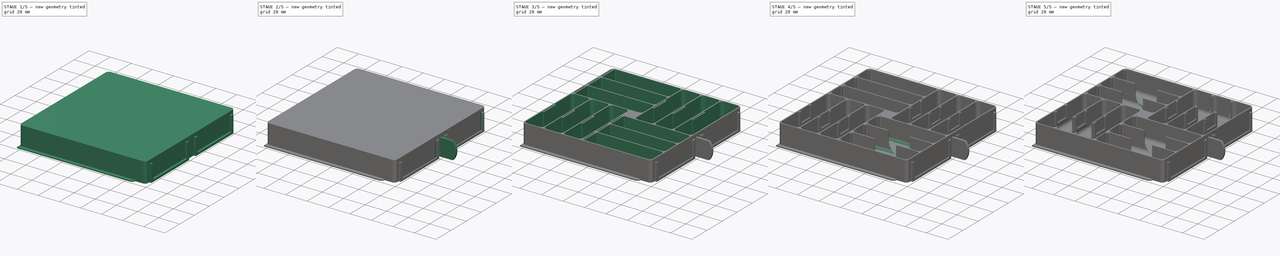
[diagram: build sequence overview — one tinted view per stage of 5, left to right]
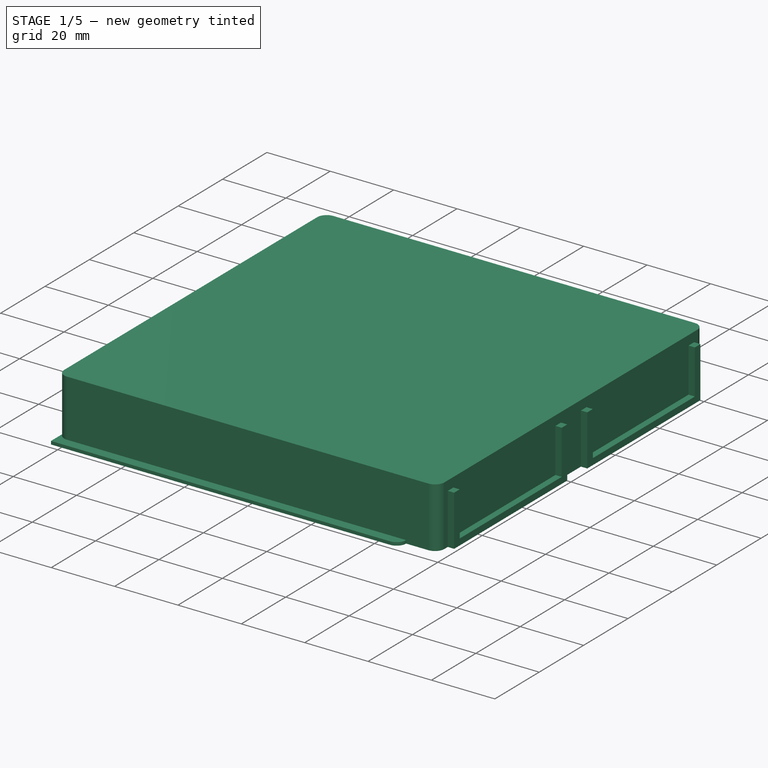
[diagram: stage 1 of 5 — iso view after this stage's code; geometry added in this stage tinted green]
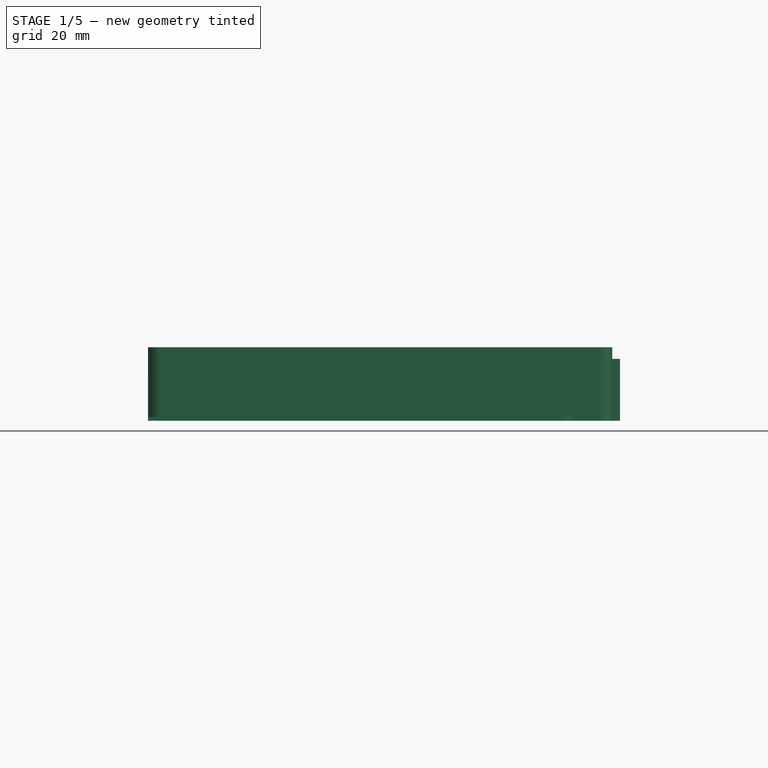
[diagram: stage 1 of 5 — front view after this stage's code; geometry added in this stage tinted green]
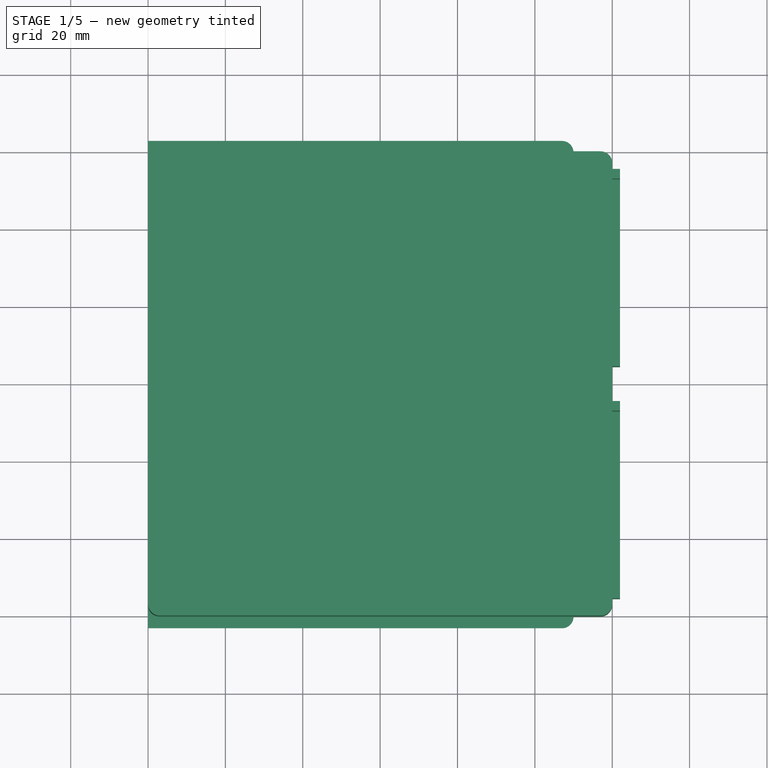
[diagram: stage 1 of 5 — top view after this stage's code; geometry added in this stage tinted green]
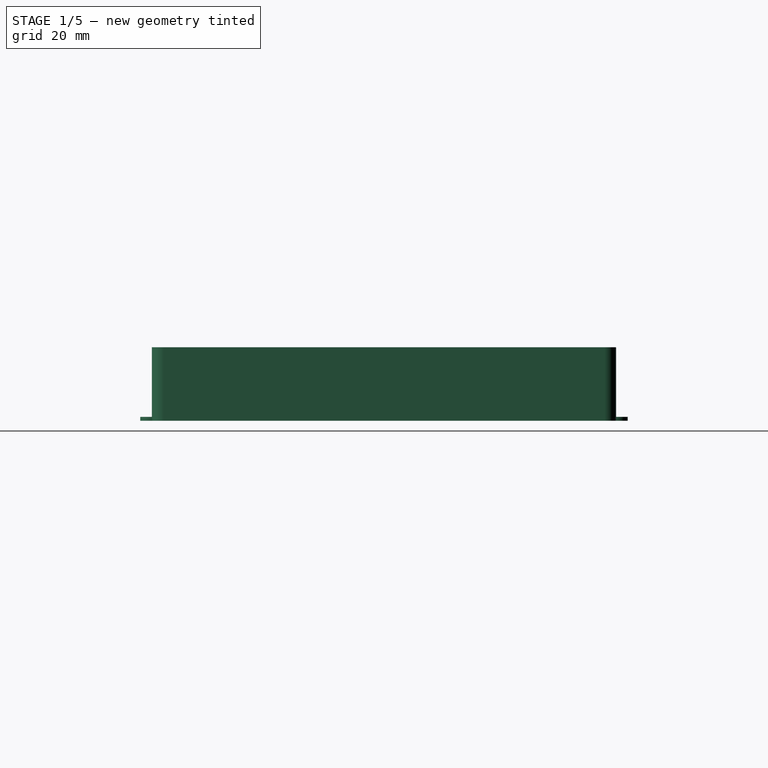
[diagram: stage 1 of 5 — right view after this stage's code; geometry added in this stage tinted green]
FCSTD DOCUMENT  (FreeCAD 0.20R27422 (Git))
Label: _ResistorDrawer
License: All rights reserved
LicenseURL: http://en.wikipedia.org/wiki/All_rights_reserved
objects: Sketcher::SketchObject×12, PartDesign::Pocket×7, PartDesign::Pad×5, PartDesign::PolarPattern×3, PartDesign::Body×2, PartDesign::Plane×1, Spreadsheet::Sheet×1, PartDesign::FeatureBase×1, PartDesign::LinearPattern×1, PartDesign::MultiTransform×1, PartDesign::Fillet×1, PartDesign::Chamfer×1
note: 49 computed .brp shape members not serialized (recipe doc carries the construction recipe); baked Part::Feature solids carry a one-line shape summary decoded from their .brp

FEATURE [Sketcher::SketchObject] Sketch
  FullyConstrained = true
  MapMode = 5
  Support = -> [XY_Plane]
  sketch-geometry (8):
    g0: LineSegment StartX=-57 StartY=60 StartZ=0 EndX=57 EndY=60 EndZ=0
    g1: LineSegment StartX=60 StartY=57 StartZ=0 EndX=60 EndY=-57 EndZ=0
    g2: LineSegment StartX=57 StartY=-60 StartZ=0 EndX=-57 EndY=-60 EndZ=0
    g3: LineSegment StartX=-60 StartY=-57 StartZ=0 EndX=-60 EndY=57 EndZ=0
    g4: ArcOfCircle CenterX=-57 CenterY=57 CenterZ=0 NormalX=0 NormalY=0 NormalZ=1 AngleXU=0 Radius=3 StartAngle=1.5708 EndAngle=3.14159
    g5: ArcOfCircle CenterX=57 CenterY=57 CenterZ=0 NormalX=0 NormalY=0 NormalZ=1 AngleXU=0 Radius=3 StartAngle=0 EndAngle=1.5708
    g6: ArcOfCircle CenterX=57 CenterY=-57 CenterZ=0 NormalX=0 NormalY=0 NormalZ=1 AngleXU=0 Radius=3 StartAngle=4.71239 EndAngle=6.28319
    g7: ArcOfCircle CenterX=-57 CenterY=-57 CenterZ=0 NormalX=0 NormalY=0 NormalZ=1 AngleXU=0 Radius=3 StartAngle=3.14159 EndAngle=4.71239
  constraints (19):
    c: Horizontal(g0)
    c: Horizontal(g2)
    c: Vertical(g1)
    c: Vertical(g3)
    c: Equal(g0,g3)
    c: Tangent(g3,g4) = 1.5708
    c: Tangent(g0,g4) = 1.5708
    c: Tangent(g0,g5) = 1.5708
    c: Tangent(g1,g5) = 1.5708
    c: Tangent(g1,g6) = 1.5708
    c: Tangent(g2,g6) = 1.5708
    c: Tangent(g2,g7) = 1.5708
    c: Tangent(g3,g7) = 1.5708
    c: Equal(g7,g4)
    c: Equal(g4,g5)
    c: Equal(g5,g6)
    c: Symmetric(g5,g7,g-1)
    c: DistanceX(g3,g1) = 120
    c: Radius(g7) = 3
FEATURE [Sketcher::SketchObject] Sketch001
  ExternalGeometry = -> [Sketch]
  FullyConstrained = true
  MapMode = 5
  Support = -> [XY_Plane]
  sketch-geometry (6):
    g0: LineSegment StartX=-60 StartY=63 StartZ=0 EndX=47 EndY=63 EndZ=0
    g1: LineSegment StartX=50 StartY=60 StartZ=0 EndX=50 EndY=-60 EndZ=0
    g2: LineSegment StartX=47 StartY=-63 StartZ=0 EndX=-60 EndY=-63 EndZ=0
    g3: LineSegment StartX=-60 StartY=-63 StartZ=0 EndX=-60 EndY=63 EndZ=0
    g4: ArcOfCircle CenterX=47 CenterY=60 CenterZ=0 NormalX=0 NormalY=0 NormalZ=1 AngleXU=0 Radius=3 StartAngle=-9e-16 EndAngle=1.5708
    g5: ArcOfCircle CenterX=47 CenterY=-60 CenterZ=0 NormalX=0 NormalY=0 NormalZ=1 AngleXU=0 Radius=3 StartAngle=4.71239 EndAngle=6.28319
  constraints (15):
    c: Coincident(g2,g3)
    c: Coincident(g3,g0)
    c: Horizontal(g0)
    c: Horizontal(g2)
    c: Vertical(g1)
    c: Tangent(g0,g4) = 1.5708
    c: Tangent(g1,g4) = 1.5708
    c: Tangent(g2,g5) = 1.5708
    c: Tangent(g1,g5) = 1.5708
    c: Equal(g5,g4)
    c: Symmetric(g2,g0,g-1)
    c: PointOnObject(g-3,g3)
    c: DistanceY(g3,g3) = 126
    c: DistanceX(g0,g1) = 110
    c: Radius(g4) = 3
FEATURE [PartDesign::Pad] Pad
  AllowMultiFace = false
  Direction = (1,1,1)
  Length = 19
  Length2 = 100
  Profile = -> Sketch
  Type = 0
  expr: Length = <<DrawerHight>>.hight
FEATURE [PartDesign::Pad] Pad001
  AllowMultiFace = false
  BaseFeature = -> Pad
  Direction = (1,1,1)
  Length = 1
  Length2 = 100
  Profile = -> Sketch001
  Type = 0
FEATURE [Sketcher::SketchObject] Sketch002
  FullyConstrained = true
  MapMode = 5
  Placement = pos=(60,0,0) rot=(0.57735,0.57735,0.57735;2.0944rad)
  Support = -> [Pad001]
  sketch-geometry (8):
    g0: LineSegment StartX=-55.5 StartY=16 StartZ=0 EndX=-4.5 EndY=16 EndZ=0
    g1: LineSegment StartX=-4.5 StartY=16 StartZ=0 EndX=-4.5 EndY=0 EndZ=0
    g2: LineSegment StartX=-4.5 StartY=0 StartZ=0 EndX=-55.5 EndY=0 EndZ=0
    g3: LineSegment StartX=-55.5 StartY=0 StartZ=0 EndX=-55.5 EndY=16 EndZ=0
    g4: LineSegment StartX=4.5 StartY=0 StartZ=0 EndX=55.5 EndY=0 EndZ=0
    g5: LineSegment StartX=55.5 StartY=0 StartZ=0 EndX=55.5 EndY=16 EndZ=0
    g6: LineSegment StartX=55.5 StartY=16 StartZ=0 EndX=4.5 EndY=16 EndZ=0
    g7: LineSegment StartX=4.5 StartY=16 StartZ=0 EndX=4.5 EndY=0 EndZ=0
  constraints (23):
    c: Coincident(g0,g1)
    c: Coincident(g1,g2)
    c: Coincident(g2,g3)
    c: Coincident(g3,g0)
    c: Horizontal(g0)
    c: Horizontal(g2)
    c: Vertical(g1)
    c: Vertical(g3)
    c: PointOnObject(g1,g-1)
    c: Coincident(g4,g5)
    c: Coincident(g5,g6)
    c: Coincident(g6,g7)
    c: Coincident(g7,g4)
    c: Horizontal(g4)
    c: Horizontal(g6)
    c: Vertical(g5)
    c: Vertical(g7)
    c: Symmetric(g1,g4,g-2)
    c: DistanceX(g1,g4) = 9
    c: DistanceX(g2,g2) = 51
    c: DistanceY(g3,g3) = 16
    c: Equal(g1,g7)
    c: Equal(g4,g2)
FEATURE [Sketcher::SketchObject] Sketch005
  ExternalGeometry = -> [Sketch002]
  FullyConstrained = true
  MapMode = 5
  Placement = pos=(0,0,0) rot=(1,0,0;1.5708rad)
  Support = -> [XZ_Plane]
  sketch-geometry (4):
    g0: ArcOfCircle CenterX=63.0557 CenterY=8 CenterZ=0 NormalX=0 NormalY=0 NormalZ=1 AngleXU=0 Radius=12 StartAngle=5.55346 EndAngle=7.01291
    g1: LineSegment StartX=72 StartY=16 StartZ=0 EndX=60 EndY=16 EndZ=0
    g2: LineSegment StartX=60 StartY=16 StartZ=0 EndX=60 EndY=1.2859e-11 EndZ=0
    g3: LineSegment StartX=60 StartY=1.2859e-11 StartZ=0 EndX=72 EndY=1.2859e-11 EndZ=0
  constraints (11):
    c: Coincident(g0,g1)
    c: Coincident(g1,g-3)
    c: Horizontal(g1)
    c: Coincident(g1,g2)
    c: Coincident(g2,g-3)
    c: Coincident(g2,g3)
    c: Coincident(g3,g0)
    c: Horizontal(g3)
    c: Equal(g1,g3)
    c: DistanceX(g1,g1) = 12
    c: Radius(g0) = 12
FEATURE [PartDesign::Plane] DatumPlane
  Length = 135.492
  MapMode = 5
  Placement = pos=(60,0,0) rot=(0.57735,0.57735,0.57735;2.0944rad)
  ResizeMode = 0
  Support = -> [Pad001]
  Width = 65.4919
FEATURE [Sketcher::SketchObject] Sketch003
  FullyConstrained = true
  MapMode = 5
  Placement = pos=(60,0,0) rot=(0.57735,0.57735,0.57735;2.0944rad)
  Support = -> [DatumPlane]
  sketch-geometry (8):
    g0: LineSegment StartX=-53 StartY=16 StartZ=0 EndX=-7 EndY=16 EndZ=0
    g1: LineSegment StartX=-7 StartY=16 StartZ=0 EndX=-7 EndY=2 EndZ=0
    g2: LineSegment StartX=-7 StartY=2 StartZ=0 EndX=-53 EndY=2 EndZ=0
    g3: LineSegment StartX=-53 StartY=2 StartZ=0 EndX=-53 EndY=16 EndZ=0
    g4: LineSegment StartX=7 StartY=16 StartZ=0 EndX=53 EndY=16 EndZ=0
    g5: LineSegment StartX=53 StartY=16 StartZ=0 EndX=53 EndY=2 EndZ=0
    g6: LineSegment StartX=53 StartY=2 StartZ=0 EndX=7 EndY=2 EndZ=0
    g7: LineSegment StartX=7 StartY=2 StartZ=0 EndX=7 EndY=16 EndZ=0
  constraints (23):
    c: Coincident(g0,g1)
    c: Coincident(g1,g2)
    c: Coincident(g2,g3)
    c: Coincident(g3,g0)
    c: Horizontal(g0)
    c: Horizontal(g2)
    c: Vertical(g1)
    c: Vertical(g3)
    c: Coincident(g4,g5)
    c: Coincident(g5,g6)
    c: Coincident(g6,g7)
    c: Coincident(g7,g4)
    c: Horizontal(g4)
    c: Horizontal(g6)
    c: Vertical(g5)
    c: Vertical(g7)
    c: Equal(g1,g7)
    c: Symmetric(g6,g1,g-2)
    c: Equal(g2,g6)
    c: DistanceY(g-1,g1) = 2
    c: DistanceX(g0,g4) = 14
    c: DistanceY(g3,g3) = 14
    c: DistanceX(g0,g0) = 46
FEATURE [Sketcher::SketchObject] Sketch004
  FullyConstrained = true
  MapMode = 5
  Placement = pos=(60,0,0) rot=(0.57735,0.57735,0.57735;2.0944rad)
  Support = -> [DatumPlane]
  sketch-geometry (8):
    g0: LineSegment StartX=-5.5 StartY=16 StartZ=0 EndX=-54.5 EndY=16 EndZ=0
    g1: LineSegment StartX=-54.5 StartY=16 StartZ=0 EndX=-54.5 EndY=1 EndZ=0
    g2: LineSegment StartX=-54.5 StartY=1 StartZ=0 EndX=-5.5 EndY=1 EndZ=0
    g3: LineSegment StartX=-5.5 StartY=1 StartZ=0 EndX=-5.5 EndY=16 EndZ=0
    g4: LineSegment StartX=5.5 StartY=16 StartZ=0 EndX=54.5 EndY=16 EndZ=0
    g5: LineSegment StartX=54.5 StartY=16 StartZ=0 EndX=54.5 EndY=1 EndZ=0
    g6: LineSegment StartX=54.5 StartY=1 StartZ=0 EndX=5.5 EndY=1 EndZ=0
    g7: LineSegment StartX=5.5 StartY=1 StartZ=0 EndX=5.5 EndY=16 EndZ=0
  constraints (23):
    c: Coincident(g0,g1)
    c: Coincident(g1,g2)
    c: Coincident(g2,g3)
    c: Coincident(g3,g0)
    c: Horizontal(g0)
    c: Horizontal(g2)
    c: Vertical(g1)
    c: Vertical(g3)
    c: Coincident(g4,g5)
    c: Coincident(g5,g6)
    c: Coincident(g6,g7)
    c: Coincident(g7,g4)
    c: Horizontal(g4)
    c: Horizontal(g6)
    c: Vertical(g5)
    c: Vertical(g7)
    c: Symmetric(g6,g2,g-2)
    c: DistanceY(g-1,g2) = 1
    c: DistanceY(g1,g1) = 15
    c: DistanceX(g2,g2) = 49
    c: Equal(g2,g6)
    c: Equal(g3,g7)
    c: DistanceX(g0,g4) = 11
FEATURE [PartDesign::Pad] Pad002
  AllowMultiFace = false
  BaseFeature = -> Pad001
  Direction = (1,1,1)
  Length = 2
  Length2 = 100
  Profile = -> Sketch002
  Type = 0
FEATURE [PartDesign::Pocket] Pocket
  AllowMultiFace = false
  BaseFeature = -> Pad002
  Direction = (1,1,1)
  Length = 3
  Length2 = 100
  Profile = -> Sketch003
  Reversed = true
  Type = 0
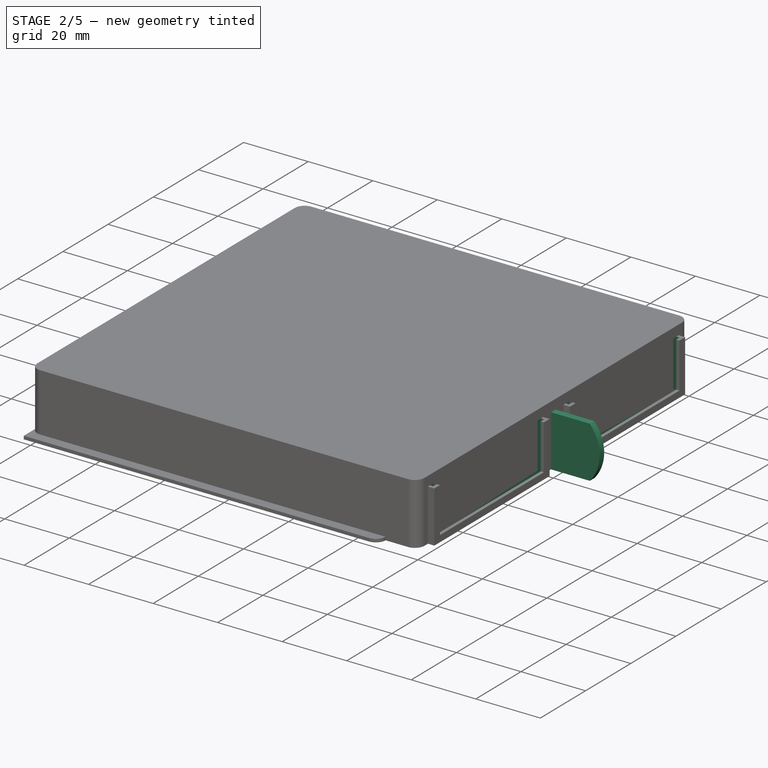
[diagram: stage 2 of 5 — iso view after this stage's code; geometry added in this stage tinted green]
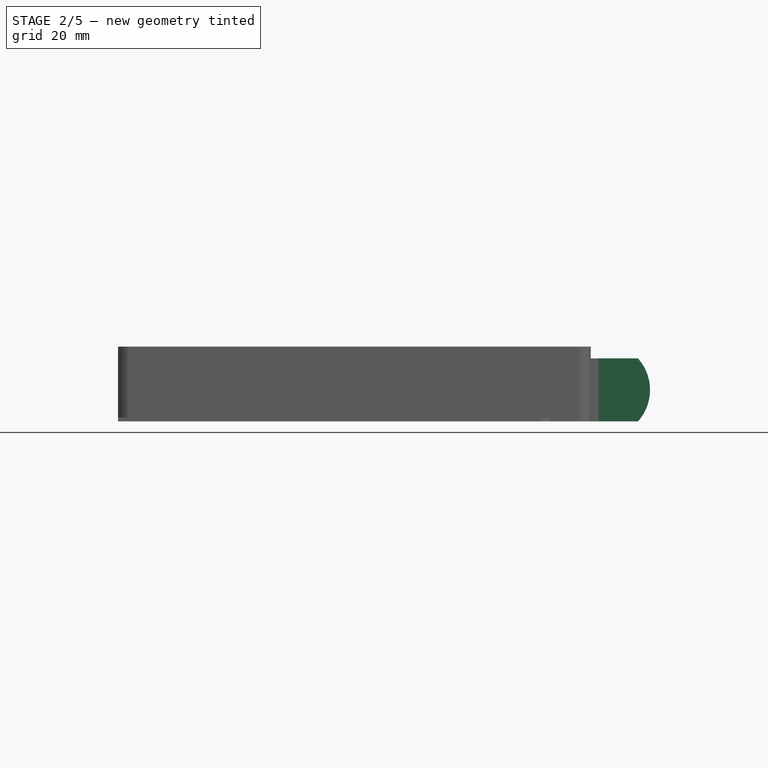
[diagram: stage 2 of 5 — front view after this stage's code; geometry added in this stage tinted green]
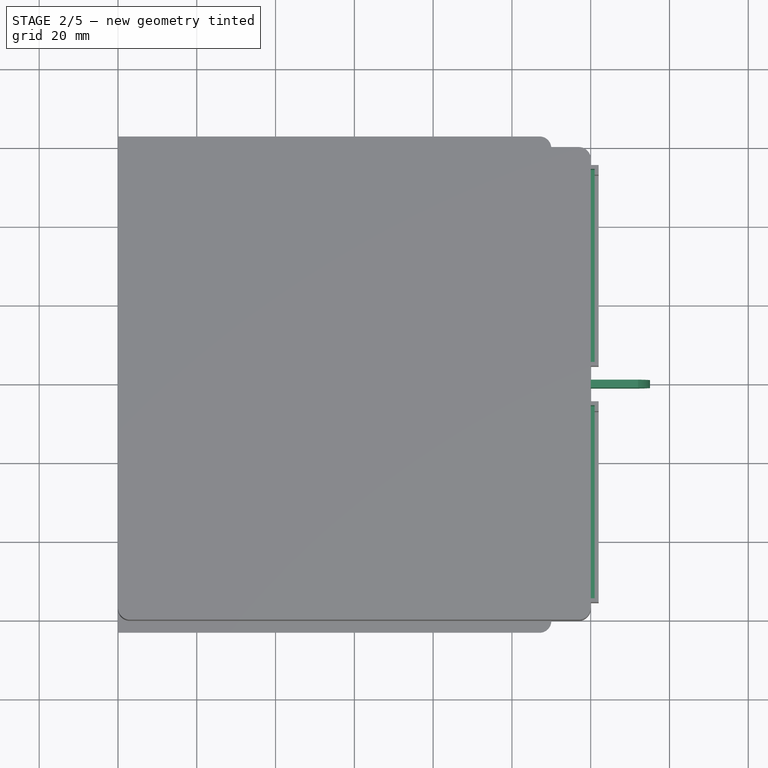
[diagram: stage 2 of 5 — top view after this stage's code; geometry added in this stage tinted green]
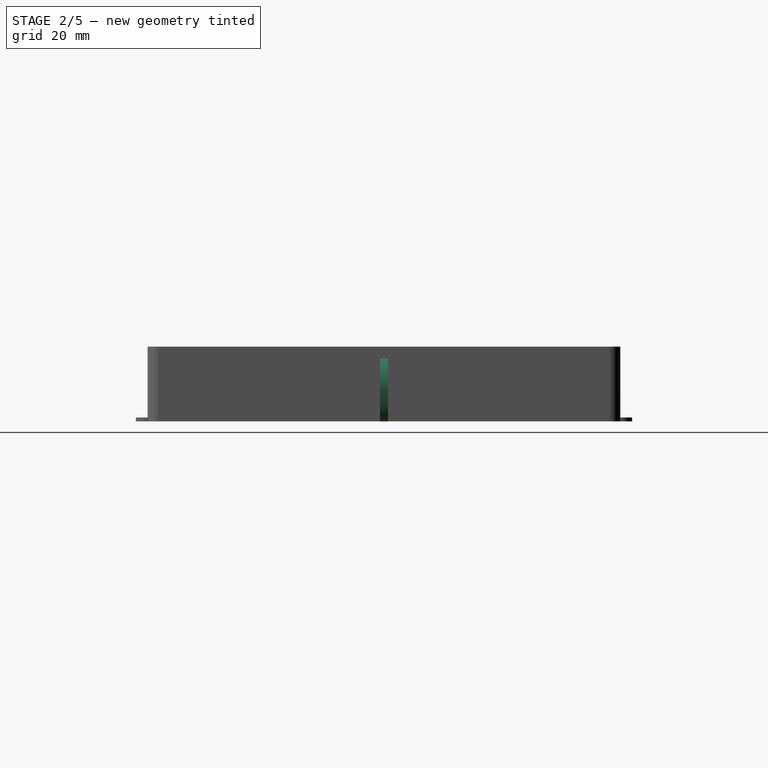
[diagram: stage 2 of 5 — right view after this stage's code; geometry added in this stage tinted green]
FEATURE [PartDesign::Pocket] Pocket001
  AllowMultiFace = false
  BaseFeature = -> Pocket
  Direction = (1,1,1)
  Length = 1
  Length2 = 100
  Profile = -> Sketch004
  Reversed = true
  Type = 0
FEATURE [PartDesign::Pad] Pad003
  AllowMultiFace = false
  BaseFeature = -> Pocket001
  Direction = (1,1,1)
  Length = 2
  Length2 = 100
  Midplane = true
  Profile = -> Sketch005
  Type = 0
FEATURE [Spreadsheet::Sheet] Spreadsheet  label="DrawerHight"
  cells = A2=please enter the desired height in mm; A3=Hight:; B3(hight)=19; A5=Info:; A6=1U = 19mm; A7=2U = 39mm; A8=3U = 59mm; A9=4U = 79mm; A10=5U = 99mm; A11=6U = 119mm
FEATURE [PartDesign::Body] Body  label="Main-Body"
  Group = -> [Sketch,Pad,Sketch001,Pad001,DatumPlane,Sketch002,Pad002,Sketch003,Pocket,Sketch004,Pocket001,Sketch005,Pad003]
  Origin = -> Origin
  Tip = -> Pad003
FEATURE [PartDesign::FeatureBase] Clone
  BaseFeature = -> Body
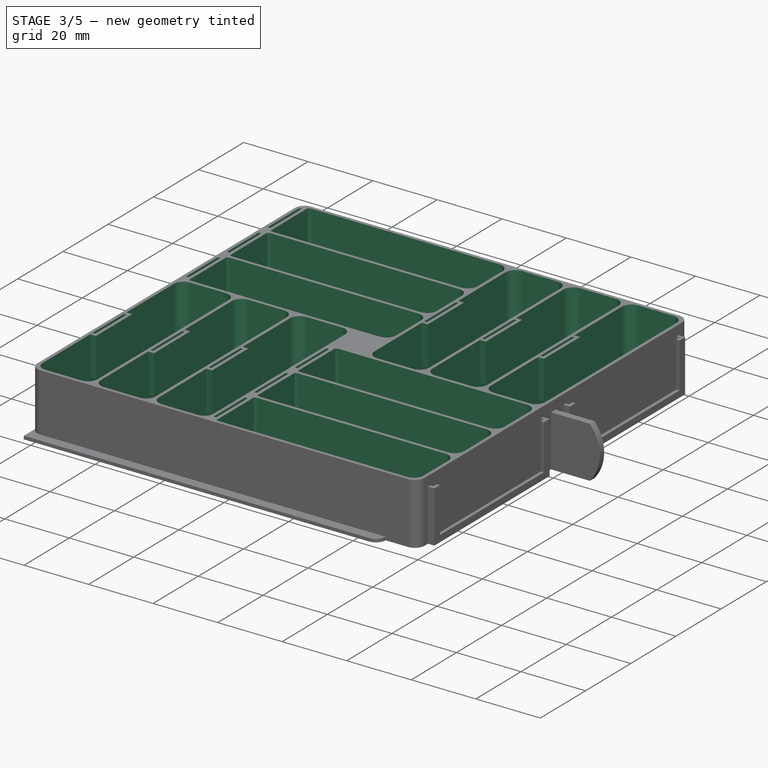
[diagram: stage 3 of 5 — iso view after this stage's code; geometry added in this stage tinted green]
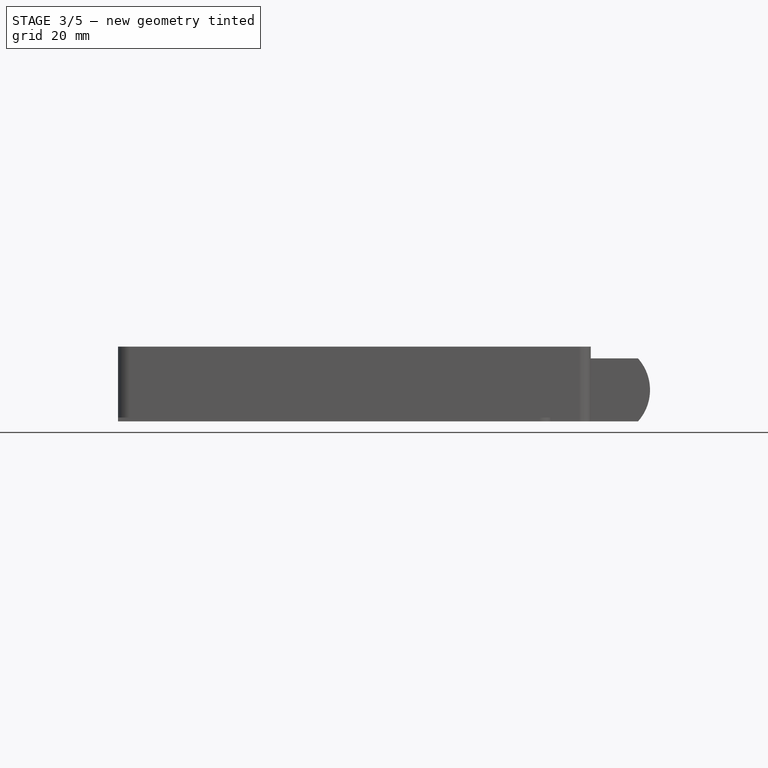
[diagram: stage 3 of 5 — front view after this stage's code; geometry added in this stage tinted green]
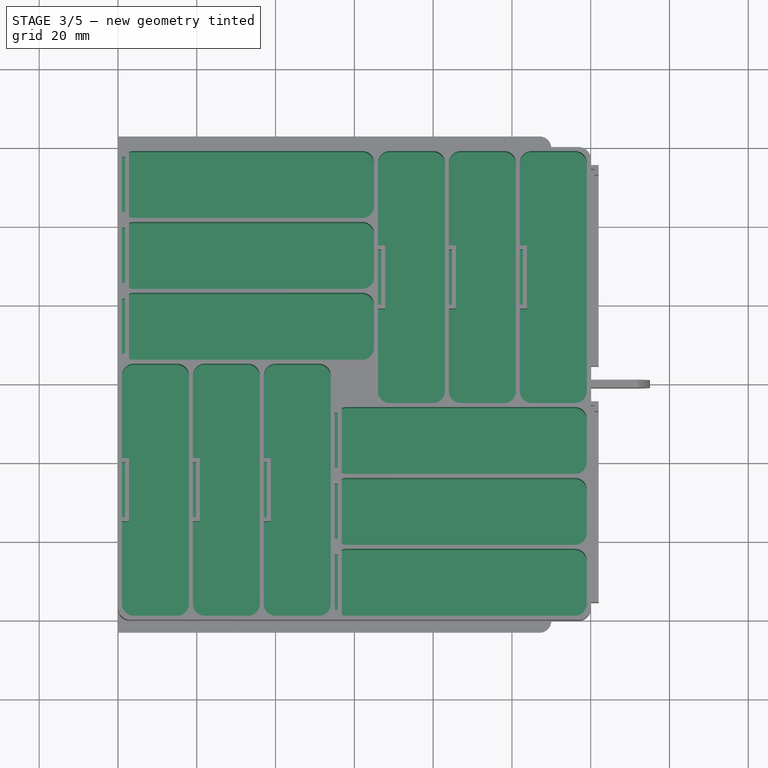
[diagram: stage 3 of 5 — top view after this stage's code; geometry added in this stage tinted green]
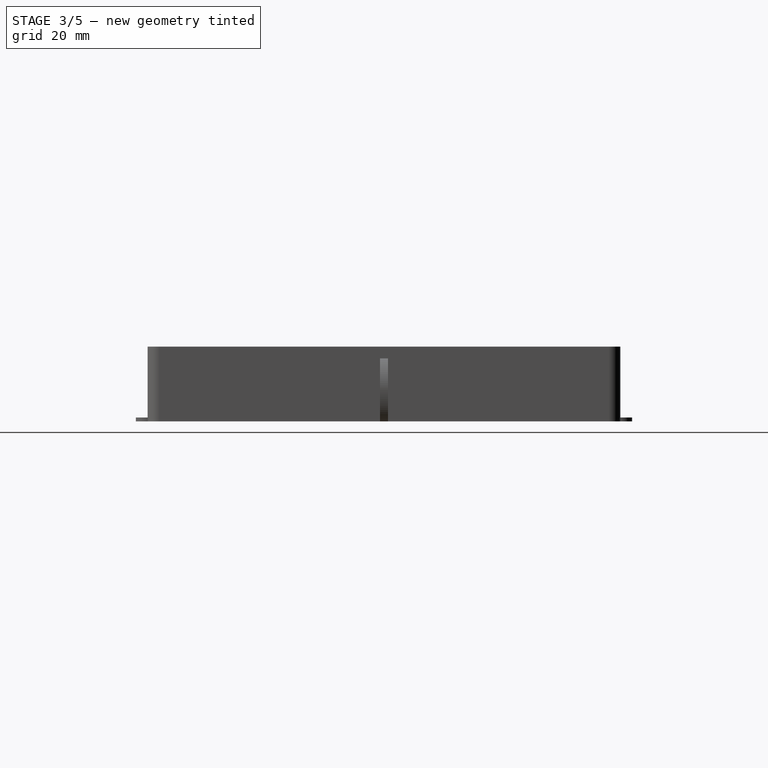
[diagram: stage 3 of 5 — right view after this stage's code; geometry added in this stage tinted green]
FEATURE [Sketcher::SketchObject] Sketch006
  AttachmentOffset = pos=(0,0,19) rot=(0,0,1;0rad)
  FullyConstrained = true
  MapMode = 5
  Placement = pos=(0,0,19) rot=(0,0,1;0rad)
  Support = -> [XY_Plane001]
  expr: .AttachmentOffset.Base.z = <<DrawerHight>>.hight
  sketch-geometry (17):
    g0: LineSegment StartX=-57 StartY=60 StartZ=0 EndX=57 EndY=60 EndZ=0
    g1: LineSegment StartX=60 StartY=57 StartZ=0 EndX=60 EndY=-57 EndZ=0
    g2: LineSegment StartX=57 StartY=-60 StartZ=0 EndX=-57 EndY=-60 EndZ=0
    g3: LineSegment StartX=-60 StartY=-57 StartZ=0 EndX=-60 EndY=57 EndZ=0
    g4: ArcOfCircle CenterX=-57 CenterY=57 CenterZ=0 NormalX=0 NormalY=0 NormalZ=1 AngleXU=0 Radius=3 StartAngle=1.5708 EndAngle=3.14159
    g5: ArcOfCircle CenterX=57 CenterY=57 CenterZ=0 NormalX=0 NormalY=0 NormalZ=1 AngleXU=0 Radius=3 StartAngle=-9e-16 EndAngle=1.5708
    g6: ArcOfCircle CenterX=57 CenterY=-57 CenterZ=0 NormalX=0 NormalY=0 NormalZ=1 AngleXU=0 Radius=3 StartAngle=4.71239 EndAngle=6.28319
    g7: ArcOfCircle CenterX=-57 CenterY=-57 CenterZ=0 NormalX=0 NormalY=0 NormalZ=1 AngleXU=0 Radius=3 StartAngle=3.14159 EndAngle=4.71239
    g8: LineSegment StartX=-56 StartY=5 StartZ=0 EndX=-45 EndY=5 EndZ=0
    g9: LineSegment StartX=-42 StartY=2 StartZ=0 EndX=-42 EndY=-56 EndZ=0
    g10: LineSegment StartX=-45 StartY=-59 StartZ=0 EndX=-56 EndY=-59 EndZ=0
    g11: LineSegment StartX=-59 StartY=-56 StartZ=0 EndX=-59 EndY=2 EndZ=0
    g12: ArcOfCircle CenterX=-45 CenterY=-56 CenterZ=0 NormalX=0 NormalY=0 NormalZ=1 AngleXU=0 Radius=3 StartAngle=4.71239 EndAngle=6.28319
    g13: ArcOfCircle CenterX=-45 CenterY=2 CenterZ=0 NormalX=0 NormalY=0 NormalZ=1 AngleXU=0 Radius=3 StartAngle=0 EndAngle=1.5708
    g14: ArcOfCircle CenterX=-56 CenterY=2 CenterZ=0 NormalX=0 NormalY=0 NormalZ=1 AngleXU=0 Radius=3 StartAngle=1.5708 EndAngle=3.14159
    g15: ArcOfCircle CenterX=-56 CenterY=-56 CenterZ=0 NormalX=0 NormalY=0 NormalZ=1 AngleXU=0 Radius=3 StartAngle=3.14159 EndAngle=4.71239
    g16: GeomPoint X=-50.5 Y=-27 Z=0
  constraints (40):
    c: Horizontal(g0)
    c: Horizontal(g2)
    c: Vertical(g1)
    c: Vertical(g3)
    c: Tangent(g3,g4) = 1.5708
    c: Tangent(g0,g4) = 1.5708
    c: Tangent(g0,g5) = 1.5708
    c: Tangent(g1,g5) = 1.5708
    c: Tangent(g1,g6) = 1.5708
    c: Tangent(g2,g6) = 1.5708
    c: Tangent(g2,g7) = 1.5708
    c: Tangent(g3,g7) = 1.5708
    c: Equal(g7,g6)
    c: Equal(g6,g5)
    c: Equal(g5,g4)
    c: Radius(g7) = 3
    c: Symmetric(g7,g5,g-1)
    c: Equal(g3,g0)
    c: DistanceX(g3,g1) = 120
    c: Horizontal(g8)
    c: Horizontal(g10)
    c: Vertical(g9)
    c: Vertical(g11)
    c: Tangent(g10,g12) = 1.5708
    c: Tangent(g9,g12) = 1.5708
    c: Tangent(g9,g13) = 1.5708
    c: Tangent(g8,g13) = 1.5708
    c: Tangent(g11,g14) = 1.5708
    c: Tangent(g8,g14) = 1.5708
    c: DistanceX(g11,g9) = 17
    c: Tangent(g10,g15) = 1.5708
    c: Tangent(g11,g15) = 1.5708
    c: Equal(g12,g15)
    c: Equal(g15,g14)
    c: Equal(g14,g13)
    c: Radius(g12) = 3
    c: DistanceY(g2,g10) = 1
    c: DistanceX(g3,g11) = 1
    c: DistanceY(g10,g8) = 64
    c: Symmetric(g13,g15,g16)
FEATURE [PartDesign::Pocket] Pocket002
  BaseFeature = -> Clone
  Direction = (1,1,1)
  Length = 18
  Length2 = 100
  Profile = -> Sketch006
  Refine = true
  Type = 0
  expr: Length = <<DrawerHight>>.hight - 1
FEATURE [PartDesign::LinearPattern] LinearPattern
  Direction = -> Sketch006 [H_Axis]
  Length = 36
  Occurrences = 3
  Overlap = 0
  Refine = true
FEATURE [PartDesign::PolarPattern] PolarPattern
  Angle = 360
  Axis = -> Sketch006 [N_Axis]
  Occurrences = 4
  Overlap = 0
  Refine = true
FEATURE [PartDesign::MultiTransform] MultiTransform
  BaseFeature = -> Pocket002
  Originals = -> [Pocket002]
  Overlap = 0
  Refine = true
  Transformations = -> [LinearPattern,PolarPattern]
FEATURE [Sketcher::SketchObject] Sketch007
  AttachmentOffset = pos=(0,0,19) rot=(0,0,1;0rad)
  FullyConstrained = true
  MapMode = 5
  Placement = pos=(0,0,19) rot=(0,0,1;0rad)
  Support = -> [XY_Plane001]
  expr: .AttachmentOffset.Base.z = <<DrawerHight>>.hight
  sketch-geometry (56):
    g0: LineSegment StartX=-5 StartY=-6 StartZ=0 EndX=-3.2 EndY=-6 EndZ=0
    g1: LineSegment StartX=-3.2 StartY=-6 StartZ=0 EndX=-3.2 EndY=-23 EndZ=0
    g2: LineSegment StartX=-3.2 StartY=-23 StartZ=0 EndX=-5 EndY=-23 EndZ=0
    g3: LineSegment StartX=-5 StartY=-23 StartZ=0 EndX=-5 EndY=-6 EndZ=0
    g4: LineSegment StartX=-3.2 StartY=-24 StartZ=0 EndX=-5 EndY=-24 EndZ=0
    g5: LineSegment StartX=-5 StartY=-24 StartZ=0 EndX=-5 EndY=-41 EndZ=0
    g6: LineSegment StartX=-5 StartY=-41 StartZ=0 EndX=-3.2 EndY=-41 EndZ=0
    g7: LineSegment StartX=-3.2 StartY=-41 StartZ=0 EndX=-3.2 EndY=-24 EndZ=0
    g8: LineSegment StartX=-3.2 StartY=-42 StartZ=0 EndX=-5 EndY=-42 EndZ=0
    g9: LineSegment StartX=-5 StartY=-42 StartZ=0 EndX=-5 EndY=-59 EndZ=0
    g10: LineSegment StartX=-5 StartY=-59 StartZ=0 EndX=-3.2 EndY=-59 EndZ=0
    g11: LineSegment StartX=-3.2 StartY=-59 StartZ=0 EndX=-3.2 EndY=-42 EndZ=0
    g12: LineSegment StartX=-3.2 StartY=-23 StartZ=0 EndX=-3.2 EndY=-24 EndZ=0
    g13: LineSegment StartX=-3.2 StartY=-41 StartZ=0 EndX=-3.2 EndY=-42 EndZ=0
    g14: LineSegment StartX=-57.2 StartY=42 StartZ=0 EndX=-57.2 EndY=41 EndZ=0
    g15: LineSegment StartX=-57.2 StartY=24 StartZ=0 EndX=-57.2 EndY=23 EndZ=0
    g16: LineSegment StartX=-57.2 StartY=23 StartZ=0 EndX=-59 EndY=23 EndZ=0
    g17: LineSegment StartX=-59 StartY=23 StartZ=0 EndX=-59 EndY=6 EndZ=0
    g18: LineSegment StartX=-59 StartY=6 StartZ=0 EndX=-57.2 EndY=6 EndZ=0
    g19: LineSegment StartX=-57.2 StartY=6 StartZ=0 EndX=-57.2 EndY=23 EndZ=0
    g20: LineSegment StartX=-57.2 StartY=24 StartZ=0 EndX=-59 EndY=24 EndZ=0
    g21: LineSegment StartX=-59 StartY=24 StartZ=0 EndX=-59 EndY=41 EndZ=0
    g22: LineSegment StartX=-59 StartY=41 StartZ=0 EndX=-57.2 EndY=41 EndZ=0
    g23: LineSegment StartX=-57.2 StartY=41 StartZ=0 EndX=-57.2 EndY=24 EndZ=0
    g24: LineSegment StartX=-57.2 StartY=42 StartZ=0 EndX=-59 EndY=42 EndZ=0
    g25: LineSegment StartX=-59 StartY=42 StartZ=0 EndX=-59 EndY=59 EndZ=0
    g26: LineSegment StartX=-59 StartY=59 StartZ=0 EndX=-57.2 EndY=59 EndZ=0
    g27: LineSegment StartX=-57.2 StartY=59 StartZ=0 EndX=-57.2 EndY=42 EndZ=0
    g28: LineSegment StartX=-59 StartY=-19 StartZ=0 EndX=-57.2 EndY=-19 EndZ=0
    g29: LineSegment StartX=-57.2 StartY=-19 StartZ=0 EndX=-57.2 EndY=-35 EndZ=0
    g30: LineSegment StartX=-57.2 StartY=-35 StartZ=0 EndX=-59 EndY=-35 EndZ=0
    g31: LineSegment StartX=-59 StartY=-35 StartZ=0 EndX=-59 EndY=-19 EndZ=0
    g32: LineSegment StartX=-41 StartY=-19 StartZ=0 EndX=-39.2 EndY=-19 EndZ=0
    g33: LineSegment StartX=-39.2 StartY=-19 StartZ=0 EndX=-39.2 EndY=-35 EndZ=0
    g34: LineSegment StartX=-39.2 StartY=-35 StartZ=0 EndX=-41 EndY=-35 EndZ=0
    g35: LineSegment StartX=-41 StartY=-35 StartZ=0 EndX=-41 EndY=-19 EndZ=0
    g36: LineSegment StartX=-23 StartY=-19 StartZ=0 EndX=-21.2 EndY=-19 EndZ=0
    g37: LineSegment StartX=-21.2 StartY=-19 StartZ=0 EndX=-21.2 EndY=-35 EndZ=0
    g38: LineSegment StartX=-21.2 StartY=-35 StartZ=0 EndX=-23 EndY=-35 EndZ=0
    g39: LineSegment StartX=-23 StartY=-35 StartZ=0 EndX=-23 EndY=-19 EndZ=0
    g40: LineSegment StartX=-57.2 StartY=-19 StartZ=0 EndX=-41 EndY=-19 EndZ=0
    g41: LineSegment StartX=-39.2 StartY=-19 StartZ=0 EndX=-23 EndY=-19 EndZ=0
    g42: LineSegment StartX=7.8 StartY=35 StartZ=0 EndX=6 EndY=35 EndZ=0
    g43: LineSegment StartX=6 StartY=35 StartZ=0 EndX=6 EndY=19 EndZ=0
    g44: LineSegment StartX=6 StartY=19 StartZ=0 EndX=7.8 EndY=19 EndZ=0
    g45: LineSegment StartX=7.8 StartY=19 StartZ=0 EndX=7.8 EndY=35 EndZ=0
    g46: LineSegment StartX=25.8 StartY=35 StartZ=0 EndX=24 EndY=35 EndZ=0
    g47: LineSegment StartX=24 StartY=35 StartZ=0 EndX=24 EndY=19 EndZ=0
    g48: LineSegment StartX=24 StartY=19 StartZ=0 EndX=25.8 EndY=19 EndZ=0
    g49: LineSegment StartX=25.8 StartY=19 StartZ=0 EndX=25.8 EndY=35 EndZ=0
    g50: LineSegment StartX=42 StartY=35 StartZ=0 EndX=43.8 EndY=35 EndZ=0
    g51: LineSegment StartX=43.8 StartY=35 StartZ=0 EndX=43.8 EndY=19 EndZ=0
    g52: LineSegment StartX=43.8 StartY=19 StartZ=0 EndX=42 EndY=19 EndZ=0
    g53: LineSegment StartX=42 StartY=19 StartZ=0 EndX=42 EndY=35 EndZ=0
    g54: LineSegment StartX=7.8 StartY=35 StartZ=0 EndX=24 EndY=35 EndZ=0
    g55: LineSegment StartX=25.8 StartY=35 StartZ=0 EndX=42 EndY=35 EndZ=0
  constraints (160):
    c: Coincident(g0,g1)
    c: Coincident(g1,g2)
    c: Coincident(g2,g3)
    c: Coincident(g3,g0)
    c: Horizontal(g0)
    c: Horizontal(g2)
    c: Vertical(g1)
    c: Vertical(g3)
    c: Coincident(g4,g5)
    c: Coincident(g5,g6)
    c: Coincident(g6,g7)
    c: Coincident(g7,g4)
    c: Horizontal(g4)
    c: Horizontal(g6)
    c: Vertical(g5)
    c: Vertical(g7)
    c: Coincident(g8,g9)
    c: Coincident(g9,g10)
    c: Coincident(g10,g11)
    c: Coincident(g11,g8)
    c: Horizontal(g8)
    c: Horizontal(g10)
    c: Vertical(g9)
    c: Vertical(g11)
    c: Coincident(g12,g1)
    c: Coincident(g12,g4)
    c: Vertical(g12)
    c: Coincident(g13,g6)
    c: Coincident(g13,g8)
    c: Vertical(g14)
    c: Vertical(g15)
    c: Coincident(g16,g17)
    c: Coincident(g17,g18)
    c: Coincident(g18,g19)
    c: Coincident(g19,g16)
    c: Horizontal(g16)
    c: Horizontal(g18)
    c: Vertical(g17)
    c: Vertical(g19)
    c: Coincident(g16,g15)
    c: Coincident(g20,g21)
    c: Coincident(g21,g22)
    c: Coincident(g22,g23)
    c: Coincident(g23,g20)
    c: Horizontal(g20)
    c: Horizontal(g22)
    c: Vertical(g21)
    c: Vertical(g23)
    c: Coincident(g20,g15)
    c: Coincident(g24,g25)
    c: Coincident(g25,g26)
    c: Coincident(g26,g27)
    c: Coincident(g27,g24)
    c: Horizontal(g24)
    c: Horizontal(g26)
    c: Vertical(g25)
    c: Vertical(g27)
    c: Coincident(g24,g14)
    c: Coincident(g22,g14)
    c: Equal(g10,g6)
    c: Equal(g6,g2)
    c: Equal(g2,g18)
    c: Equal(g18,g20)
    c: Equal(g20,g24)
    c: Equal(g9,g5)
    c: Equal(g5,g3)
    c: Equal(g3,g17)
    c: Equal(g17,g21)
    c: Equal(g21,g25)
    c: DistanceY(g25,g25) = 17
    c: DistanceY(g14,g14) = 1
    c: DistanceX(g26,g26) = 1.8
    c: DistanceY(g-1,g17) = 6
    c: DistanceX(g17,g-1) = 59
    c: DistanceY(g0,g-1) = 6
    c: Vertical(g13)
    c: DistanceX(g9,g-1) = 5
    c: Equal(g13,g12)
    c: Equal(g12,g15)
    c: Equal(g15,g14)
    c: Coincident(g28,g29)
    c: Coincident(g29,g30)
    c: Coincident(g30,g31)
    c: Coincident(g31,g28)
    c: Horizontal(g28)
    c: Horizontal(g30)
    c: Vertical(g31)
    c: Coincident(g32,g33)
    c: Coincident(g33,g34)
    c: Coincident(g34,g35)
    c: Coincident(g35,g32)
    c: Horizontal(g32)
    c: Horizontal(g34)
    c: Vertical(g33)
    c: Vertical(g35)
    c: Coincident(g36,g37)
    c: Coincident(g37,g38)
    c: Coincident(g38,g39)
    c: Coincident(g39,g36)
    c: Horizontal(g36)
    c: Horizontal(g38)
    c: Vertical(g37)
    c: Vertical(g39)
    c: Equal(g10,g30)
    c: Equal(g30,g34)
    c: Equal(g34,g38)
    c: DistanceY(g28,g-1) = 19
    c: Coincident(g40,g28)
    c: Coincident(g40,g32)
    c: Horizontal(g40)
    c: Coincident(g41,g32)
    c: Coincident(g41,g36)
    c: Horizontal(g41)
    c: Equal(g40,g41)
    c: Vertical(g29)
    c: DistanceX(g36,g-1) = 23
    c: DistanceX(g40,g40) = 16.2
    c: DistanceY(g31,g31) = 16
    c: Equal(g31,g35)
    c: Equal(g35,g39)
    c: Coincident(g42,g43)
    c: Coincident(g43,g44)
    c: Coincident(g44,g45)
    c: Coincident(g45,g42)
    c: Horizontal(g42)
    c: Horizontal(g44)
    c: Vertical(g43)
    c: Vertical(g45)
    c: Coincident(g46,g47)
    c: Coincident(g47,g48)
    c: Coincident(g48,g49)
    c: Coincident(g49,g46)
    c: Horizontal(g46)
    c: Horizontal(g48)
    c: Vertical(g47)
    c: Vertical(g49)
    c: Coincident(g50,g51)
    c: Coincident(g51,g52)
    c: Coincident(g52,g53)
    c: Coincident(g53,g50)
    c: Horizontal(g50)
    c: Horizontal(g52)
    c: Vertical(g51)
    c: Vertical(g53)
    c: Equal(g39,g45)
    c: Equal(g45,g49)
    c: Equal(g49,g53)
    c: Equal(g38,g44)
    c: Equal(g44,g48)
    c: Equal(g48,g52)
    c: Coincident(g54,g42)
    c: Coincident(g54,g46)
    c: Horizontal(g54)
    c: Coincident(g55,g46)
    c: Coincident(g55,g50)
    c: Horizontal(g55)
    c: Equal(g41,g54)
    c: Equal(g54,g55)
    c: DistanceY(g-1,g43) = 19
    c: DistanceX(g-1,g43) = 6
FEATURE [PartDesign::Pad] Pad004
  BaseFeature = -> MultiTransform
  Direction = (1,1,1)
  Length = 12
  Length2 = 100
  Profile = -> Sketch007
  Refine = true
  Reversed = true
  Type = 0
FEATURE [Sketcher::SketchObject] Sketch008
  AttachmentOffset = pos=(0,0,19) rot=(0,0,1;0rad)
  FullyConstrained = true
  MapMode = 5
  Placement = pos=(0,0,19) rot=(0,0,1;0rad)
  Support = -> [XY_Plane001]
  expr: .AttachmentOffset.Base.z = <<DrawerHight>>.hight
  sketch-geometry (56):
    g0: LineSegment StartX=-59 StartY=57.5 StartZ=0 EndX=-58.2 EndY=57.5 EndZ=0
    g1: LineSegment StartX=-58.2 StartY=57.5 StartZ=0 EndX=-58.2 EndY=43.5 EndZ=0
    g2: LineSegment StartX=-58.2 StartY=43.5 StartZ=0 EndX=-59 EndY=43.5 EndZ=0
    g3: LineSegment StartX=-59 StartY=43.5 StartZ=0 EndX=-59 EndY=57.5 EndZ=0
    g4: LineSegment StartX=-59 StartY=39.5 StartZ=0 EndX=-58.2 EndY=39.5 EndZ=0
    g5: LineSegment StartX=-58.2 StartY=39.5 StartZ=0 EndX=-58.2 EndY=25.5 EndZ=0
    g6: LineSegment StartX=-58.2 StartY=25.5 StartZ=0 EndX=-59 EndY=25.5 EndZ=0
    g7: LineSegment StartX=-59 StartY=25.5 StartZ=0 EndX=-59 EndY=39.5 EndZ=0
    g8: LineSegment StartX=-59 StartY=21.5 StartZ=0 EndX=-58.2 EndY=21.5 EndZ=0
    g9: LineSegment StartX=-58.2 StartY=21.5 StartZ=0 EndX=-58.2 EndY=7.5 EndZ=0
    g10: LineSegment StartX=-58.2 StartY=7.5 StartZ=0 EndX=-59 EndY=7.5 EndZ=0
    g11: LineSegment StartX=-59 StartY=7.5 StartZ=0 EndX=-59 EndY=21.5 EndZ=0
    g12: LineSegment StartX=-59 StartY=-20 StartZ=0 EndX=-58.2 EndY=-20 EndZ=0
    g13: LineSegment StartX=-58.2 StartY=-20 StartZ=0 EndX=-58.2 EndY=-34 EndZ=0
    g14: LineSegment StartX=-58.2 StartY=-34 StartZ=0 EndX=-59 EndY=-34 EndZ=0
    g15: LineSegment StartX=-59 StartY=-34 StartZ=0 EndX=-59 EndY=-20 EndZ=0
    g16: LineSegment StartX=-41 StartY=-20 StartZ=0 EndX=-40.2 EndY=-20 EndZ=0
    g17: LineSegment StartX=-40.2 StartY=-20 StartZ=0 EndX=-40.2 EndY=-34 EndZ=0
    g18: LineSegment StartX=-40.2 StartY=-34 StartZ=0 EndX=-41 EndY=-34 EndZ=0
    g19: LineSegment StartX=-41 StartY=-34 StartZ=0 EndX=-41 EndY=-20 EndZ=0
    g20: LineSegment StartX=-23 StartY=-20 StartZ=0 EndX=-22.2 EndY=-20 EndZ=0
    g21: LineSegment StartX=-22.2 StartY=-20 StartZ=0 EndX=-22.2 EndY=-34 EndZ=0
    g22: LineSegment StartX=-22.2 StartY=-34 StartZ=0 EndX=-23 EndY=-34 EndZ=0
    g23: LineSegment StartX=-23 StartY=-34 StartZ=0 EndX=-23 EndY=-20 EndZ=0
    g24: LineSegment StartX=-5 StartY=-7.5 StartZ=0 EndX=-4.2 EndY=-7.5 EndZ=0
    g25: LineSegment StartX=-4.2 StartY=-7.5 StartZ=0 EndX=-4.2 EndY=-21.5 EndZ=0
    g26: LineSegment StartX=-4.2 StartY=-21.5 StartZ=0 EndX=-5 EndY=-21.5 EndZ=0
    g27: LineSegment StartX=-5 StartY=-21.5 StartZ=0 EndX=-5 EndY=-7.5 EndZ=0
    g28: LineSegment StartX=-5 StartY=-25.5 StartZ=0 EndX=-4.2 EndY=-25.5 EndZ=0
    g29: LineSegment StartX=-4.2 StartY=-25.5 StartZ=0 EndX=-4.2 EndY=-39.5 EndZ=0
    g30: LineSegment StartX=-4.2 StartY=-39.5 StartZ=0 EndX=-5 EndY=-39.5 EndZ=0
    g31: LineSegment StartX=-5 StartY=-39.5 StartZ=0 EndX=-5 EndY=-25.5 EndZ=0
    g32: LineSegment StartX=-5 StartY=-43.5 StartZ=0 EndX=-4.2 EndY=-43.5 EndZ=0
    g33: LineSegment StartX=-4.2 StartY=-43.5 StartZ=0 EndX=-4.2 EndY=-57.5 EndZ=0
    g34: LineSegment StartX=-4.2 StartY=-57.5 StartZ=0 EndX=-5 EndY=-57.5 EndZ=0
    g35: LineSegment StartX=-5 StartY=-57.5 StartZ=0 EndX=-5 EndY=-43.5 EndZ=0
    g36: LineSegment StartX=6 StartY=34 StartZ=0 EndX=6.8 EndY=34 EndZ=0
    g37: LineSegment StartX=6.8 StartY=34 StartZ=0 EndX=6.8 EndY=20 EndZ=0
    g38: LineSegment StartX=6.8 StartY=20 StartZ=0 EndX=6 EndY=20 EndZ=0
    g39: LineSegment StartX=6 StartY=20 StartZ=0 EndX=6 EndY=34 EndZ=0
    g40: LineSegment StartX=24 StartY=34 StartZ=0 EndX=24.8 EndY=34 EndZ=0
    g41: LineSegment StartX=24.8 StartY=34 StartZ=0 EndX=24.8 EndY=20 EndZ=0
    g42: LineSegment StartX=24.8 StartY=20 StartZ=0 EndX=24 EndY=20 EndZ=0
    g43: LineSegment StartX=24 StartY=20 StartZ=0 EndX=24 EndY=34 EndZ=0
    g44: LineSegment StartX=42 StartY=34 StartZ=0 EndX=42.8 EndY=34 EndZ=0
    g45: LineSegment StartX=42.8 StartY=34 StartZ=0 EndX=42.8 EndY=20 EndZ=0
    g46: LineSegment StartX=42.8 StartY=20 StartZ=0 EndX=42 EndY=20 EndZ=0
    g47: LineSegment StartX=42 StartY=20 StartZ=0 EndX=42 EndY=34 EndZ=0
    g48: LineSegment StartX=-59 StartY=43.5 StartZ=0 EndX=-59 EndY=39.5 EndZ=0
    g49: LineSegment StartX=-59 StartY=21.5 StartZ=0 EndX=-59 EndY=25.5 EndZ=0
    g50: LineSegment StartX=6.8 StartY=34 StartZ=0 EndX=24 EndY=34 EndZ=0
    g51: LineSegment StartX=24.8 StartY=34 StartZ=0 EndX=42 EndY=34 EndZ=0
    g52: LineSegment StartX=-4.2 StartY=-21.5 StartZ=0 EndX=-4.2 EndY=-25.5 EndZ=0
    g53: LineSegment StartX=-4.2 StartY=-39.5 StartZ=0 EndX=-4.2 EndY=-43.5 EndZ=0
    g54: LineSegment StartX=-23 StartY=-34 StartZ=0 EndX=-40.2 EndY=-34 EndZ=0
    g55: LineSegment StartX=-41 StartY=-34 StartZ=0 EndX=-58.2 EndY=-34 EndZ=0
  constraints (160):
    c: Coincident(g0,g1)
    c: Coincident(g1,g2)
    c: Coincident(g2,g3)
    c: Coincident(g3,g0)
    c: Horizontal(g0)
    c: Horizontal(g2)
    c: Vertical(g1)
    c: Vertical(g3)
    c: Coincident(g4,g5)
    c: Coincident(g5,g6)
    c: Coincident(g6,g7)
    c: Coincident(g7,g4)
    c: Horizontal(g4)
    c: Horizontal(g6)
    c: Vertical(g5)
    c: Vertical(g7)
    c: Coincident(g8,g9)
    c: Coincident(g9,g10)
    c: Coincident(g10,g11)
    c: Coincident(g11,g8)
    c: Horizontal(g8)
    c: Horizontal(g10)
    c: Vertical(g9)
    c: Vertical(g11)
    c: Coincident(g12,g13)
    c: Coincident(g13,g14)
    c: Coincident(g14,g15)
    c: Coincident(g15,g12)
    c: Horizontal(g12)
    c: Horizontal(g14)
    c: Vertical(g13)
    c: Vertical(g15)
    c: Coincident(g16,g17)
    c: Coincident(g17,g18)
    c: Coincident(g18,g19)
    c: Coincident(g19,g16)
    c: Horizontal(g16)
    c: Horizontal(g18)
    c: Vertical(g17)
    c: Vertical(g19)
    c: Coincident(g20,g21)
    c: Coincident(g21,g22)
    c: Coincident(g22,g23)
    c: Coincident(g23,g20)
    c: Horizontal(g20)
    c: Horizontal(g22)
    c: Vertical(g21)
    c: Vertical(g23)
    c: Coincident(g24,g25)
    c: Coincident(g25,g26)
    c: Coincident(g26,g27)
    c: Coincident(g27,g24)
    c: Horizontal(g24)
    c: Horizontal(g26)
    c: Vertical(g25)
    c: Vertical(g27)
    c: Coincident(g28,g29)
    c: Coincident(g29,g30)
    c: Coincident(g30,g31)
    c: Coincident(g31,g28)
    c: Horizontal(g28)
    c: Horizontal(g30)
    c: Vertical(g29)
    c: Vertical(g31)
    c: Coincident(g32,g33)
    c: Coincident(g33,g34)
    c: Coincident(g34,g35)
    c: Coincident(g35,g32)
    c: Horizontal(g32)
    c: Horizontal(g34)
    c: Vertical(g33)
    c: Vertical(g35)
    c: Coincident(g36,g37)
    c: Coincident(g37,g38)
    c: Coincident(g38,g39)
    c: Coincident(g39,g36)
    c: Horizontal(g36)
    c: Horizontal(g38)
    c: Vertical(g37)
    c: Vertical(g39)
    c: Coincident(g40,g41)
    c: Coincident(g41,g42)
    c: Coincident(g42,g43)
    c: Coincident(g43,g40)
    c: Horizontal(g40)
    c: Horizontal(g42)
    c: Vertical(g41)
    c: Vertical(g43)
    c: Coincident(g44,g45)
    c: Coincident(g45,g46)
    c: Coincident(g46,g47)
    c: Coincident(g47,g44)
    c: Horizontal(g44)
    c: Horizontal(g46)
    c: Vertical(g45)
    c: Vertical(g47)
    c: Equal(g14,g18)
    c: Equal(g18,g22)
    c: Equal(g22,g26)
    c: Equal(g26,g30)
    c: Equal(g30,g34)
    c: Equal(g34,g46)
    c: Equal(g46,g42)
    c: Equal(g42,g38)
    c: Equal(g38,g2)
    c: Equal(g2,g6)
    c: Equal(g6,g10)
    c: Equal(g3,g7)
    c: Equal(g7,g11)
    c: Equal(g11,g15)
    c: Equal(g15,g19)
    c: Equal(g19,g23)
    c: Equal(g23,g35)
    c: Equal(g35,g31)
    c: Equal(g31,g27)
    c: Equal(g27,g47)
    c: Equal(g47,g43)
    c: Equal(g43,g39)
    c: DistanceX(g44,g44) = 0.8
    c: DistanceY(g45,g45) = 14
    c: Coincident(g48,g2)
    c: Coincident(g48,g4)
    c: Vertical(g48)
    c: Coincident(g49,g8)
    c: Coincident(g49,g6)
    c: Coincident(g50,g36)
    c: Coincident(g50,g40)
    c: Coincident(g51,g40)
    c: Coincident(g51,g44)
    c: Horizontal(g51)
    c: Coincident(g52,g25)
    c: Coincident(g52,g28)
    c: Coincident(g53,g29)
    c: Coincident(g53,g32)
    c: Vertical(g53)
    c: Coincident(g54,g22)
    c: Coincident(g54,g17)
    c: Coincident(g55,g18)
    c: Coincident(g55,g13)
    c: Horizontal(g55)
    c: Horizontal(g54)
    c: Horizontal(g50)
    c: Vertical(g52)
    c: Vertical(g49)
    c: Equal(g53,g52)
    c: Equal(g52,g49)
    c: Equal(g49,g48)
    c: DistanceY(g48,g48) = 4
    c: Equal(g50,g51)
    c: Equal(g51,g54)
    c: Equal(g54,g55)
    c: DistanceX(g50,g50) = 17.2
    c: DistanceX(g-1,g38) = 6
    c: DistanceY(g-1,g38) = 20
    c: DistanceY(g12,g-1) = 20
    c: DistanceX(g20,g-1) = 23
    c: DistanceX(g24,g-1) = 5
    c: DistanceY(g24,g-1) = 7.5
    c: DistanceY(g-1,g9) = 7.5
    c: DistanceX(g0,g-1) = 59
FEATURE [PartDesign::Pocket] Pocket003
  BaseFeature = -> Pad004
  Direction = (1,1,1)
  Length = 11
  Length2 = 100
  Profile = -> Sketch008
  Refine = true
  Type = 0
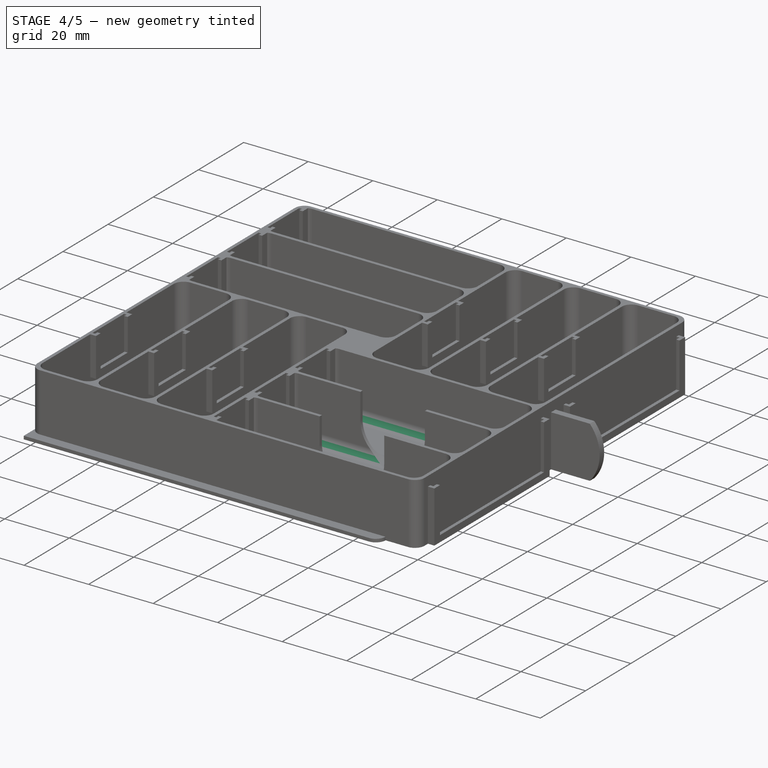
[diagram: stage 4 of 5 — iso view after this stage's code; geometry added in this stage tinted green]
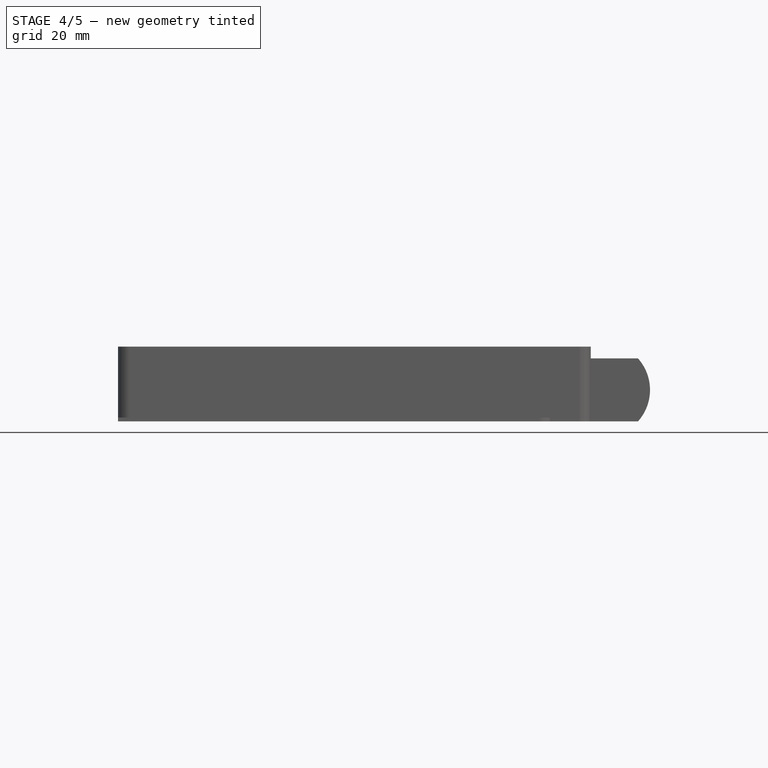
[diagram: stage 4 of 5 — front view after this stage's code; geometry added in this stage tinted green]
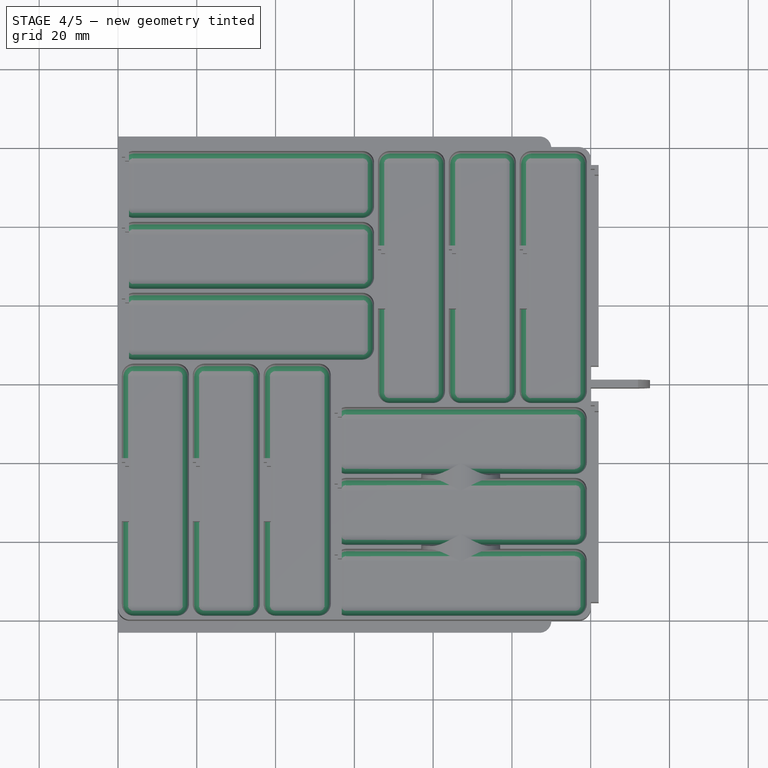
[diagram: stage 4 of 5 — top view after this stage's code; geometry added in this stage tinted green]
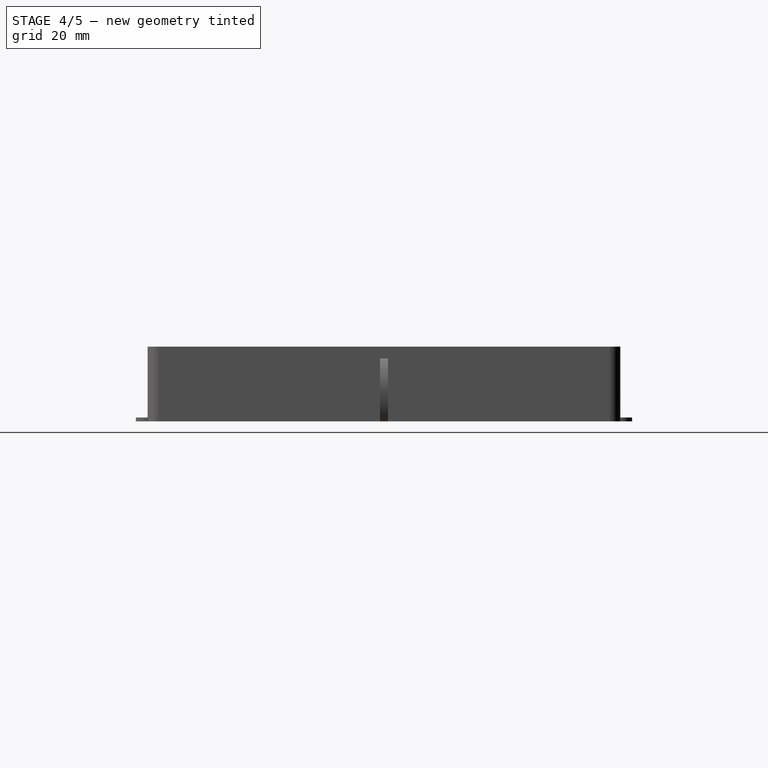
[diagram: stage 4 of 5 — right view after this stage's code; geometry added in this stage tinted green]
FEATURE [Sketcher::SketchObject] Sketch009
  AttachmentOffset = pos=(0,0,19) rot=(0,0,1;0rad)
  FullyConstrained = true
  MapMode = 5
  Placement = pos=(0,0,19) rot=(0,0,1;0rad)
  Support = -> [XY_Plane001]
  expr: .AttachmentOffset.Base.z = <<DrawerHight>>.hight
  sketch-geometry (56):
    g0: LineSegment StartX=-58.5 StartY=-21 StartZ=0 EndX=-56.5 EndY=-21 EndZ=0
    g1: LineSegment StartX=-56.5 StartY=-21 StartZ=0 EndX=-56.5 EndY=-33 EndZ=0
    g2: LineSegment StartX=-56.5 StartY=-33 StartZ=0 EndX=-58.5 EndY=-33 EndZ=0
    g3: LineSegment StartX=-58.5 StartY=-33 StartZ=0 EndX=-58.5 EndY=-21 EndZ=0
    g4: LineSegment StartX=-40.5 StartY=-21 StartZ=0 EndX=-38.5 EndY=-21 EndZ=0
    g5: LineSegment StartX=-38.5 StartY=-21 StartZ=0 EndX=-38.5 EndY=-33 EndZ=0
    g6: LineSegment StartX=-38.5 StartY=-33 StartZ=0 EndX=-40.5 EndY=-33 EndZ=0
    g7: LineSegment StartX=-40.5 StartY=-33 StartZ=0 EndX=-40.5 EndY=-21 EndZ=0
    g8: LineSegment StartX=-22.5 StartY=-21 StartZ=0 EndX=-20.5 EndY=-21 EndZ=0
    g9: LineSegment StartX=-20.5 StartY=-21 StartZ=0 EndX=-20.5 EndY=-33 EndZ=0
    g10: LineSegment StartX=-20.5 StartY=-33 StartZ=0 EndX=-22.5 EndY=-33 EndZ=0
    g11: LineSegment StartX=-22.5 StartY=-33 StartZ=0 EndX=-22.5 EndY=-21 EndZ=0
    g12: LineSegment StartX=-4.5 StartY=-44.5 StartZ=0 EndX=-2.5 EndY=-44.5 EndZ=0
    g13: LineSegment StartX=-2.5 StartY=-44.5 StartZ=0 EndX=-2.5 EndY=-56.5 EndZ=0
    g14: LineSegment StartX=-2.5 StartY=-56.5 StartZ=0 EndX=-4.5 EndY=-56.5 EndZ=0
    g15: LineSegment StartX=-4.5 StartY=-56.5 StartZ=0 EndX=-4.5 EndY=-44.5 EndZ=0
    g16: LineSegment StartX=-4.5 StartY=-26.5 StartZ=0 EndX=-2.5 EndY=-26.5 EndZ=0
    g17: LineSegment StartX=-2.5 StartY=-26.5 StartZ=0 EndX=-2.5 EndY=-38.5 EndZ=0
    g18: LineSegment StartX=-2.5 StartY=-38.5 StartZ=0 EndX=-4.5 EndY=-38.5 EndZ=0
    g19: LineSegment StartX=-4.5 StartY=-38.5 StartZ=0 EndX=-4.5 EndY=-26.5 EndZ=0
    g20: LineSegment StartX=-4.5 StartY=-8.5 StartZ=0 EndX=-2.5 EndY=-8.5 EndZ=0
    g21: LineSegment StartX=-2.5 StartY=-8.5 StartZ=0 EndX=-2.5 EndY=-20.5 EndZ=0
    g22: LineSegment StartX=-2.5 StartY=-20.5 StartZ=0 EndX=-4.5 EndY=-20.5 EndZ=0
    g23: LineSegment StartX=-4.5 StartY=-20.5 StartZ=0 EndX=-4.5 EndY=-8.5 EndZ=0
    g24: LineSegment StartX=42.5 StartY=33 StartZ=0 EndX=44.5 EndY=33 EndZ=0
    g25: LineSegment StartX=44.5 StartY=33 StartZ=0 EndX=44.5 EndY=21 EndZ=0
    g26: LineSegment StartX=44.5 StartY=21 StartZ=0 EndX=42.5 EndY=21 EndZ=0
    g27: LineSegment StartX=42.5 StartY=21 StartZ=0 EndX=42.5 EndY=33 EndZ=0
    g28: LineSegment StartX=24.5 StartY=33 StartZ=0 EndX=26.5 EndY=33 EndZ=0
    g29: LineSegment StartX=26.5 StartY=33 StartZ=0 EndX=26.5 EndY=21 EndZ=0
    g30: LineSegment StartX=26.5 StartY=21 StartZ=0 EndX=24.5 EndY=21 EndZ=0
    g31: LineSegment StartX=24.5 StartY=21 StartZ=0 EndX=24.5 EndY=33 EndZ=0
    g32: LineSegment StartX=6.5 StartY=33 StartZ=0 EndX=8.5 EndY=33 EndZ=0
    g33: LineSegment StartX=8.5 StartY=33 StartZ=0 EndX=8.5 EndY=21 EndZ=0
    g34: LineSegment StartX=8.5 StartY=21 StartZ=0 EndX=6.5 EndY=21 EndZ=0
    g35: LineSegment StartX=6.5 StartY=21 StartZ=0 EndX=6.5 EndY=33 EndZ=0
    g36: LineSegment StartX=-58.5 StartY=56.5 StartZ=0 EndX=-56.5 EndY=56.5 EndZ=0
    g37: LineSegment StartX=-56.5 StartY=56.5 StartZ=0 EndX=-56.5 EndY=44.5 EndZ=0
    g38: LineSegment StartX=-56.5 StartY=44.5 StartZ=0 EndX=-58.5 EndY=44.5 EndZ=0
    g39: LineSegment StartX=-58.5 StartY=44.5 StartZ=0 EndX=-58.5 EndY=56.5 EndZ=0
    g40: LineSegment StartX=-58.5 StartY=38.5 StartZ=0 EndX=-56.5 EndY=38.5 EndZ=0
    g41: LineSegment StartX=-56.5 StartY=38.5 StartZ=0 EndX=-56.5 EndY=26.5 EndZ=0
    g42: LineSegment StartX=-56.5 StartY=26.5 StartZ=0 EndX=-58.5 EndY=26.5 EndZ=0
    g43: LineSegment StartX=-58.5 StartY=26.5 StartZ=0 EndX=-58.5 EndY=38.5 EndZ=0
    g44: LineSegment StartX=-58.5 StartY=20.5 StartZ=0 EndX=-56.5 EndY=20.5 EndZ=0
    g45: LineSegment StartX=-56.5 StartY=20.5 StartZ=0 EndX=-56.5 EndY=8.5 EndZ=0
    g46: LineSegment StartX=-56.5 StartY=8.5 StartZ=0 EndX=-58.5 EndY=8.5 EndZ=0
    g47: LineSegment StartX=-58.5 StartY=8.5 StartZ=0 EndX=-58.5 EndY=20.5 EndZ=0
    g48: LineSegment StartX=-58.5 StartY=44.5 StartZ=0 EndX=-58.5 EndY=38.5 EndZ=0
    g49: LineSegment StartX=-58.5 StartY=26.5 StartZ=0 EndX=-58.5 EndY=20.5 EndZ=0
    g50: LineSegment StartX=8.5 StartY=33 StartZ=0 EndX=24.5 EndY=33 EndZ=0
    g51: LineSegment StartX=26.5 StartY=33 StartZ=0 EndX=42.5 EndY=33 EndZ=0
    g52: LineSegment StartX=-2.5 StartY=-20.5 StartZ=0 EndX=-2.5 EndY=-26.5 EndZ=0
    g53: LineSegment StartX=-2.5 StartY=-38.5 StartZ=0 EndX=-2.5 EndY=-44.5 EndZ=0
    g54: LineSegment StartX=-22.5 StartY=-33 StartZ=0 EndX=-38.5 EndY=-33 EndZ=0
    g55: LineSegment StartX=-40.5 StartY=-33 StartZ=0 EndX=-56.5 EndY=-33 EndZ=0
  constraints (160):
    c: Coincident(g0,g1)
    c: Coincident(g1,g2)
    c: Coincident(g2,g3)
    c: Coincident(g3,g0)
    c: Horizontal(g0)
    c: Horizontal(g2)
    c: Vertical(g1)
    c: Vertical(g3)
    c: Coincident(g4,g5)
    c: Coincident(g5,g6)
    c: Coincident(g6,g7)
    c: Coincident(g7,g4)
    c: Horizontal(g4)
    c: Horizontal(g6)
    c: Vertical(g5)
    c: Vertical(g7)
    c: Coincident(g8,g9)
    c: Coincident(g9,g10)
    c: Coincident(g10,g11)
    c: Coincident(g11,g8)
    c: Horizontal(g8)
    c: Horizontal(g10)
    c: Vertical(g9)
    c: Vertical(g11)
    c: Coincident(g12,g13)
    c: Coincident(g13,g14)
    c: Coincident(g14,g15)
    c: Coincident(g15,g12)
    c: Horizontal(g12)
    c: Horizontal(g14)
    c: Vertical(g13)
    c: Vertical(g15)
    c: Coincident(g16,g17)
    c: Coincident(g17,g18)
    c: Coincident(g18,g19)
    c: Coincident(g19,g16)
    c: Horizontal(g16)
    c: Horizontal(g18)
    c: Vertical(g17)
    c: Vertical(g19)
    c: Coincident(g20,g21)
    c: Coincident(g21,g22)
    c: Coincident(g22,g23)
    c: Coincident(g23,g20)
    c: Horizontal(g20)
    c: Horizontal(g22)
    c: Vertical(g21)
    c: Vertical(g23)
    c: Coincident(g24,g25)
    c: Coincident(g25,g26)
    c: Coincident(g26,g27)
    c: Coincident(g27,g24)
    c: Horizontal(g24)
    c: Horizontal(g26)
    c: Vertical(g25)
    c: Vertical(g27)
    c: Coincident(g28,g29)
    c: Coincident(g29,g30)
    c: Coincident(g30,g31)
    c: Coincident(g31,g28)
    c: Horizontal(g28)
    c: Horizontal(g30)
    c: Vertical(g29)
    c: Vertical(g31)
    c: Coincident(g32,g33)
    c: Coincident(g33,g34)
    c: Coincident(g34,g35)
    c: Coincident(g35,g32)
    c: Horizontal(g32)
    c: Horizontal(g34)
    c: Vertical(g33)
    c: Vertical(g35)
    c: Coincident(g36,g37)
    c: Coincident(g37,g38)
    c: Coincident(g38,g39)
    c: Coincident(g39,g36)
    c: Horizontal(g36)
    c: Horizontal(g38)
    c: Vertical(g37)
    c: Vertical(g39)
    c: Coincident(g40,g41)
    c: Coincident(g41,g42)
    c: Coincident(g42,g43)
    c: Coincident(g43,g40)
    c: Horizontal(g40)
    c: Horizontal(g42)
    c: Vertical(g41)
    c: Vertical(g43)
    c: Coincident(g44,g45)
    c: Coincident(g45,g46)
    c: Coincident(g46,g47)
    c: Coincident(g47,g44)
    c: Horizontal(g44)
    c: Horizontal(g46)
    c: Vertical(g45)
    c: Vertical(g47)
    c: Coincident(g48,g38)
    c: Coincident(g48,g40)
    c: Vertical(g48)
    c: Coincident(g49,g42)
    c: Coincident(g49,g44)
    c: Vertical(g49)
    c: Coincident(g50,g32)
    c: Coincident(g50,g28)
    c: Horizontal(g50)
    c: Coincident(g51,g28)
    c: Coincident(g51,g24)
    c: Horizontal(g51)
    c: Coincident(g52,g21)
    c: Coincident(g52,g16)
    c: Vertical(g52)
    c: Coincident(g53,g17)
    c: Coincident(g53,g12)
    c: Vertical(g53)
    c: Coincident(g54,g10)
    c: Coincident(g54,g5)
    c: Horizontal(g54)
    c: Coincident(g55,g6)
    c: Coincident(g55,g1)
    c: Horizontal(g55)
    c: Equal(g55,g54)
    c: Equal(g54,g50)
    c: Equal(g50,g51)
    c: Equal(g52,g53)
    c: Equal(g53,g49)
    c: Equal(g49,g48)
    c: Equal(g45,g41)
    c: Equal(g41,g37)
    c: Equal(g37,g33)
    c: Equal(g33,g29)
    c: Equal(g29,g25)
    c: Equal(g25,g3)
    c: Equal(g3,g7)
    c: Equal(g7,g11)
    c: Equal(g11,g23)
    c: Equal(g23,g19)
    c: Equal(g19,g15)
    c: Equal(g36,g40)
    c: Equal(g40,g44)
    c: Equal(g44,g34)
    c: Equal(g34,g30)
    c: Equal(g30,g26)
    c: Equal(g26,g22)
    c: Equal(g22,g18)
    c: Equal(g18,g14)
    c: Equal(g14,g8)
    c: Equal(g8,g4)
    c: Equal(g4,g0)
    c: DistanceX(g24,g24) = 2
    c: DistanceY(g25,g25) = 12
    c: DistanceY(g-1,g34) = 21
    c: DistanceY(g0,g-1) = 21
    c: DistanceX(g-1,g34) = 6.5
    c: DistanceX(g50,g50) = 16
    c: DistanceX(g8,g-1) = 22.5
    c: DistanceX(g36,g-1) = 58.5
    c: DistanceX(g20,g-1) = 4.5
    c: DistanceY(g20,g-1) = 8.5
    c: DistanceY(g-1,g45) = 8.5
    c: DistanceY(g48,g48) = 6
FEATURE [PartDesign::Pocket] Pocket004
  BaseFeature = -> Pocket003
  Direction = (1,1,1)
  Length = 10
  Length2 = 100
  Profile = -> Sketch009
  Refine = true
  Type = 0
FEATURE [Sketcher::SketchObject] Sketch010
  AttachmentOffset = pos=(0,0,32.5) rot=(0,0,1;0rad)
  FullyConstrained = true
  MapMode = 5
  Placement = pos=(0,-32.5,-7.2e-15) rot=(1,0,0;1.5708rad)
  Support = -> [XZ_Plane001]
  expr: Constraints[12] = <<DrawerHight>>.hight + 1
  sketch-geometry (5):
    g0: ArcOfCircle CenterX=27 CenterY=11 CenterZ=0 NormalX=0 NormalY=0 NormalZ=1 AngleXU=0 Radius=10 StartAngle=3.14159 EndAngle=6.28319
    g1: LineSegment StartX=17 StartY=11 StartZ=0 EndX=17 EndY=20 EndZ=0
    g2: LineSegment StartX=17 StartY=20 StartZ=0 EndX=37 EndY=20 EndZ=0
    g3: LineSegment StartX=37 StartY=20 StartZ=0 EndX=37 EndY=11 EndZ=0
    g4: GeomPoint X=27 Y=1 Z=0
  constraints (14):
    c: Tangent(g0,g1) = 1.5708
    c: Coincident(g1,g2)
    c: Horizontal(g2)
    c: Coincident(g2,g3)
    c: Coincident(g3,g0)
    c: Vertical(g3)
    c: Vertical(g1)
    c: Tangent(g3,g0)
    c: DistanceX(g2,g2) = 20
    c: PointOnObject(g4,g0)
    c: Vertical(g4,g0)
    c: DistanceY(g-1,g4) = 1
    c: DistanceY(g-1,g1) = 20
    c: DistanceX(g-1,g0) = 27
FEATURE [PartDesign::Fillet] Fillet
  Base = -> Pocket004 [Face233,Face238,Face241,Face256,Face260,Face264,Face278,Face273,Face268,Face252,Face248,Face244]
  BaseFeature = -> Pocket004
  Radius = 3
  Refine = true
  SupportTransform = false
  UseAllEdges = false
FEATURE [PartDesign::Pocket] Pocket005
  BaseFeature = -> Fillet
  Direction = (1,1,1)
  Length = 25
  Length2 = 100
  Midplane = true
  Profile = -> Sketch010
  Refine = true
  Type = 0
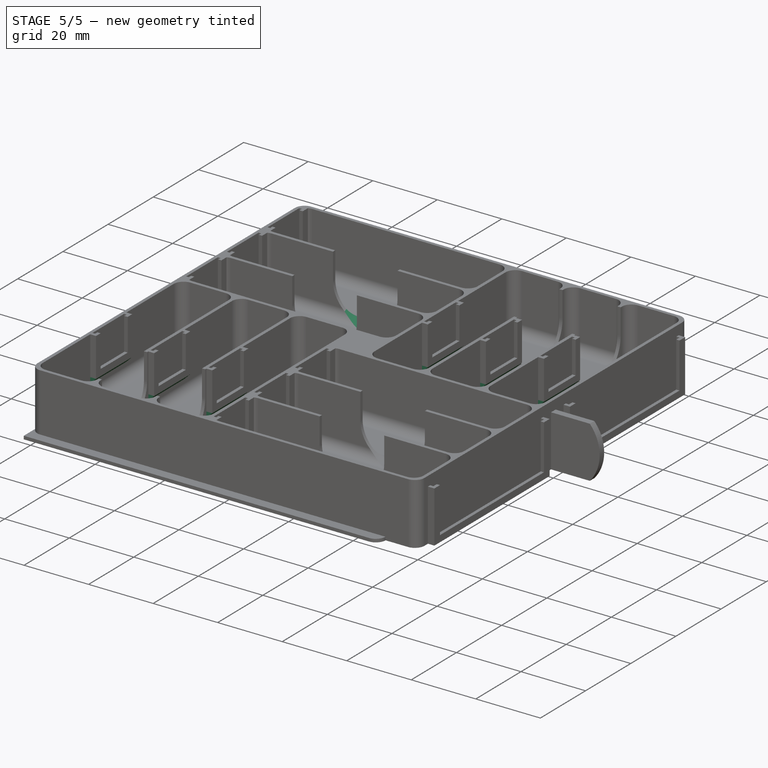
[diagram: stage 5 of 5 — iso view after this stage's code; geometry added in this stage tinted green]
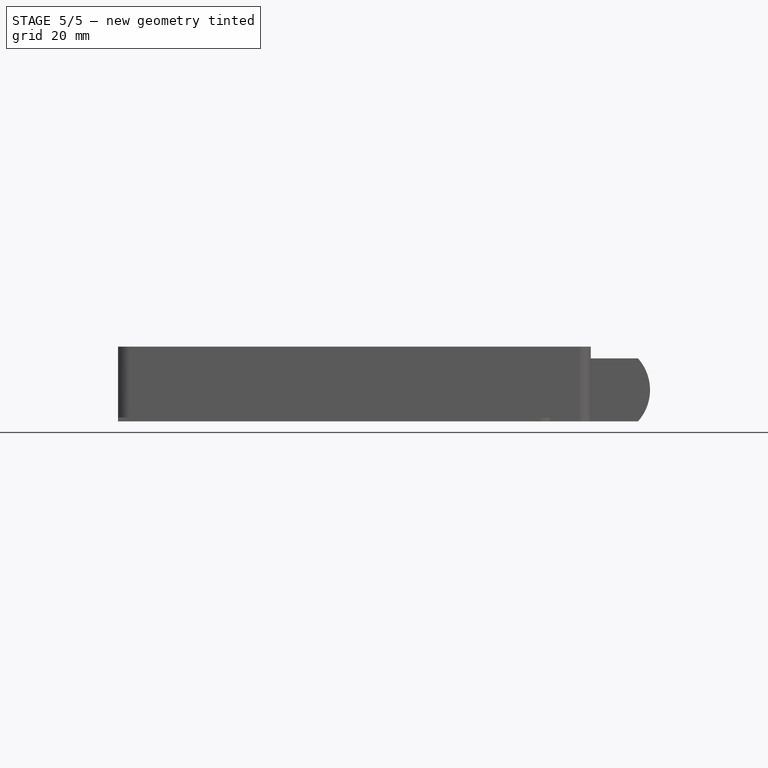
[diagram: stage 5 of 5 — front view after this stage's code; geometry added in this stage tinted green]
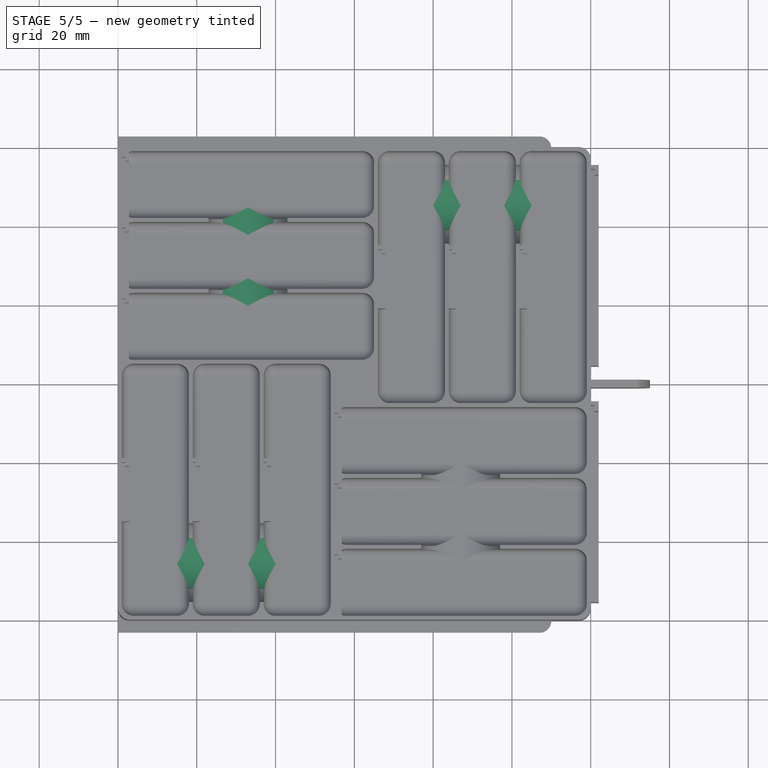
[diagram: stage 5 of 5 — top view after this stage's code; geometry added in this stage tinted green]
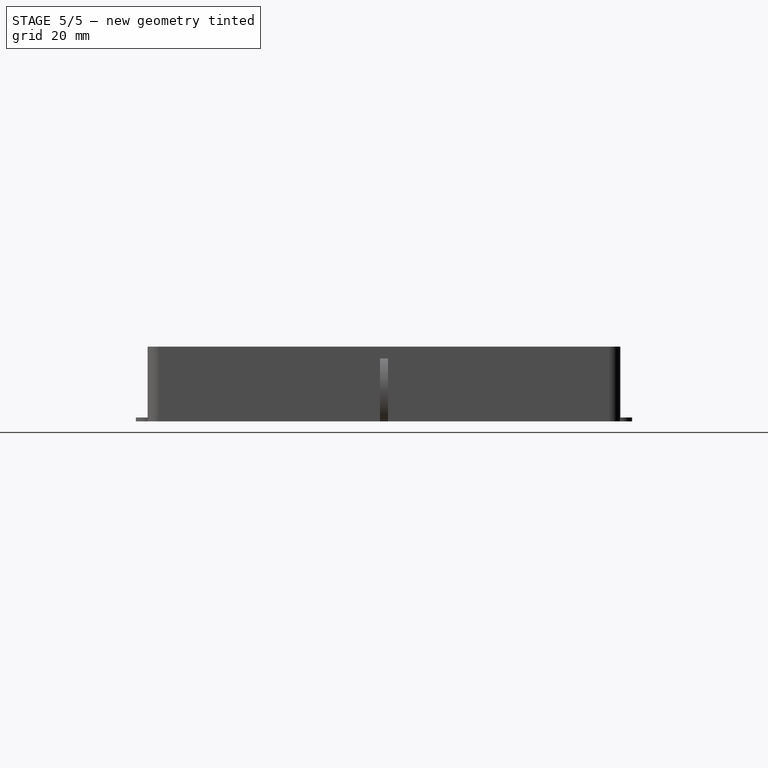
[diagram: stage 5 of 5 — right view after this stage's code; geometry added in this stage tinted green]
FEATURE [PartDesign::PolarPattern] PolarPattern001
  Angle = 360
  Axis = -> Z_Axis001
  BaseFeature = -> Pocket005
  Occurrences = 2
  Originals = -> [Pocket005]
  Overlap = 0
  Refine = true
FEATURE [Sketcher::SketchObject] Sketch011
  AttachmentOffset = pos=(0,0,32.5) rot=(0,0,1;0rad)
  FullyConstrained = true
  MapMode = 5
  Placement = pos=(32.5,-7.2e-15,7.2e-15) rot=(0.57735,0.57735,0.57735;2.0944rad)
  Support = -> [YZ_Plane001]
  expr: Constraints[12] = <<DrawerHight>>.hight + 1
  sketch-geometry (5):
    g0: ArcOfCircle CenterX=45.5 CenterY=11 CenterZ=0 NormalX=0 NormalY=0 NormalZ=1 AngleXU=0 Radius=10 StartAngle=3.14159 EndAngle=6.28319
    g1: LineSegment StartX=35.5 StartY=11 StartZ=0 EndX=35.5 EndY=20 EndZ=0
    g2: LineSegment StartX=35.5 StartY=20 StartZ=0 EndX=55.5 EndY=20 EndZ=0
    g3: LineSegment StartX=55.5 StartY=20 StartZ=0 EndX=55.5 EndY=11 EndZ=0
    g4: GeomPoint X=45.5 Y=1 Z=0
  constraints (14):
    c: Tangent(g0,g1) = 1.5708
    c: Coincident(g1,g2)
    c: Horizontal(g2)
    c: Coincident(g2,g3)
    c: Coincident(g3,g0)
    c: Vertical(g3)
    c: Vertical(g1)
    c: Tangent(g3,g0)
    c: DistanceX(g2,g2) = 20
    c: PointOnObject(g4,g0)
    c: Vertical(g4,g0)
    c: DistanceY(g-1,g4) = 1
    c: DistanceY(g-1,g1) = 20
    c: DistanceX(g-1,g0) = 45.5
FEATURE [PartDesign::Pocket] Pocket006
  BaseFeature = -> PolarPattern001
  Direction = (1,1,1)
  Length = 25
  Length2 = 100
  Midplane = true
  Profile = -> Sketch011
  Refine = true
  Type = 0
FEATURE [PartDesign::PolarPattern] PolarPattern002
  Angle = 360
  Axis = -> Z_Axis001
  BaseFeature = -> Pocket006
  Occurrences = 2
  Originals = -> [Pocket006]
  Overlap = 0
  Refine = true
FEATURE [PartDesign::Chamfer] Chamfer
  Angle = 45
  Base = -> PolarPattern002 [Edge669,Edge684,Edge600,Edge489,Edge526,Edge564]
  BaseFeature = -> PolarPattern002
  ChamferType = 0
  FlipDirection = false
  Refine = true
  Size = 1.79
  Size2 = 1
  SupportTransform = false
  UseAllEdges = false
FEATURE [PartDesign::Body] Body001  label="ResistorDrawer"
  BaseFeature = -> Body
  Group = -> [Clone,Sketch006,Pocket002,MultiTransform,LinearPattern,PolarPattern,Sketch007,Pad004,Sketch008,Pocket003,Sketch009,Pocket004,Sketch010,Fillet,Pocket005,PolarPattern001,Sketch011,Pocket006,PolarPattern002,Chamfer]
  Origin = -> Origin001
  Tip = -> Chamfer
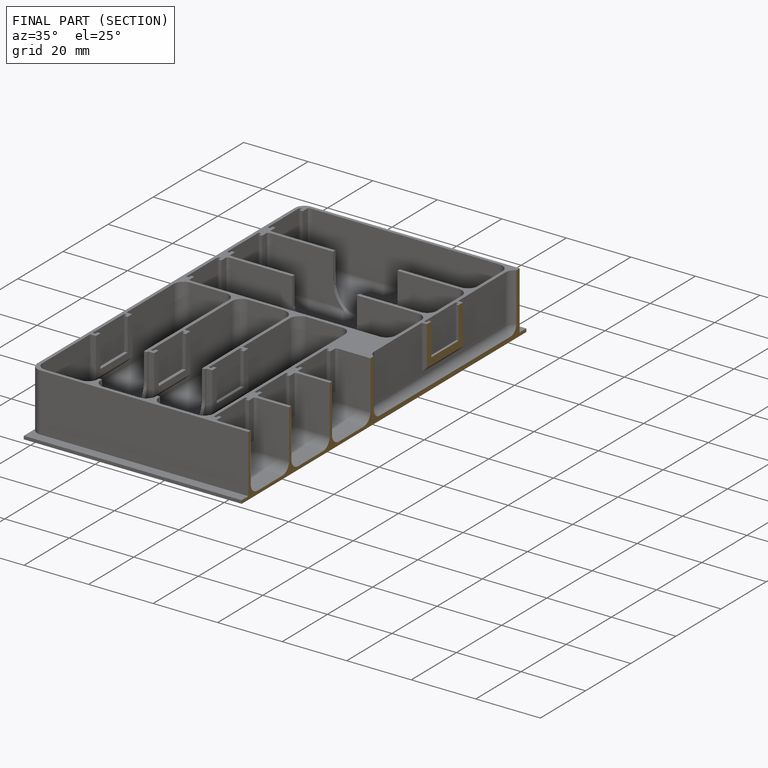
[diagram: finished part — half-section view (interior)]
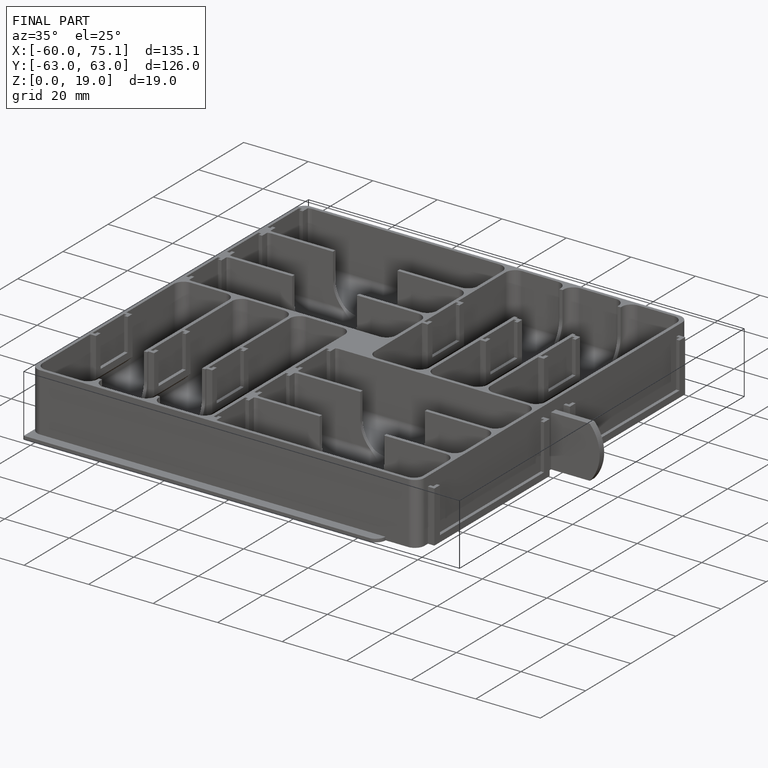
[diagram: finished part — iso view with bounding-box wireframe]
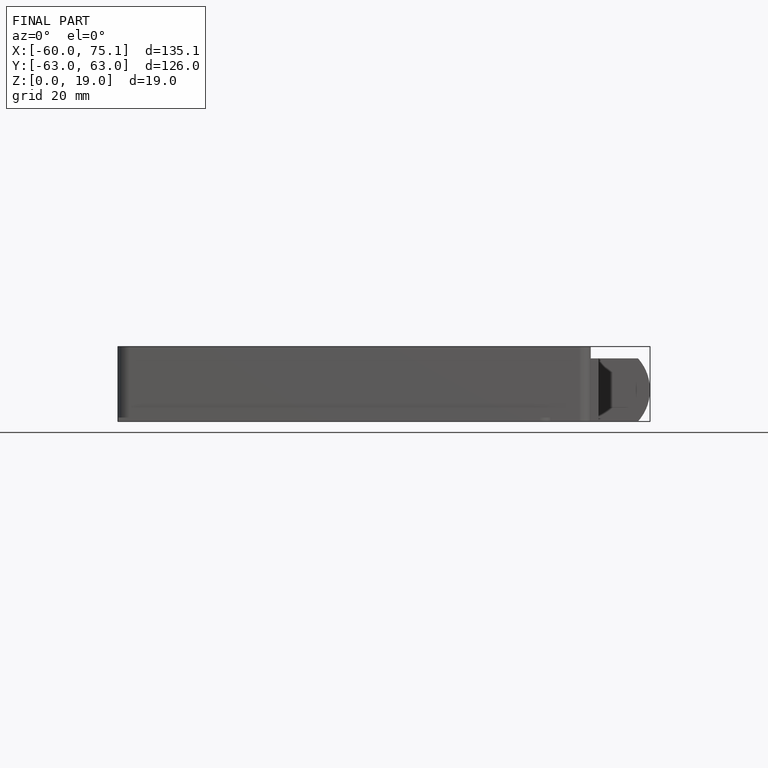
[diagram: finished part — front view with bounding-box wireframe]
